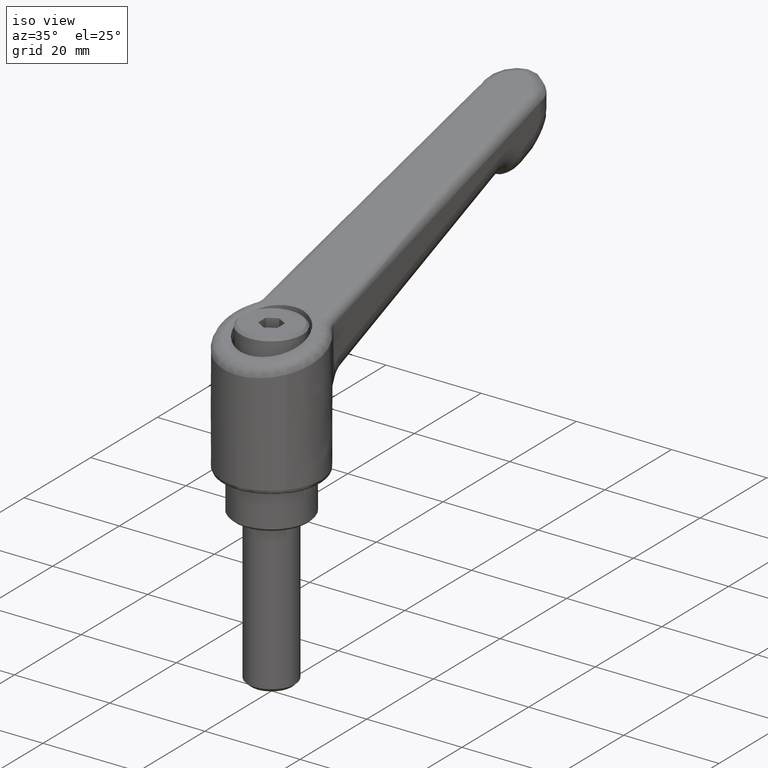
[diagram: clean part render]
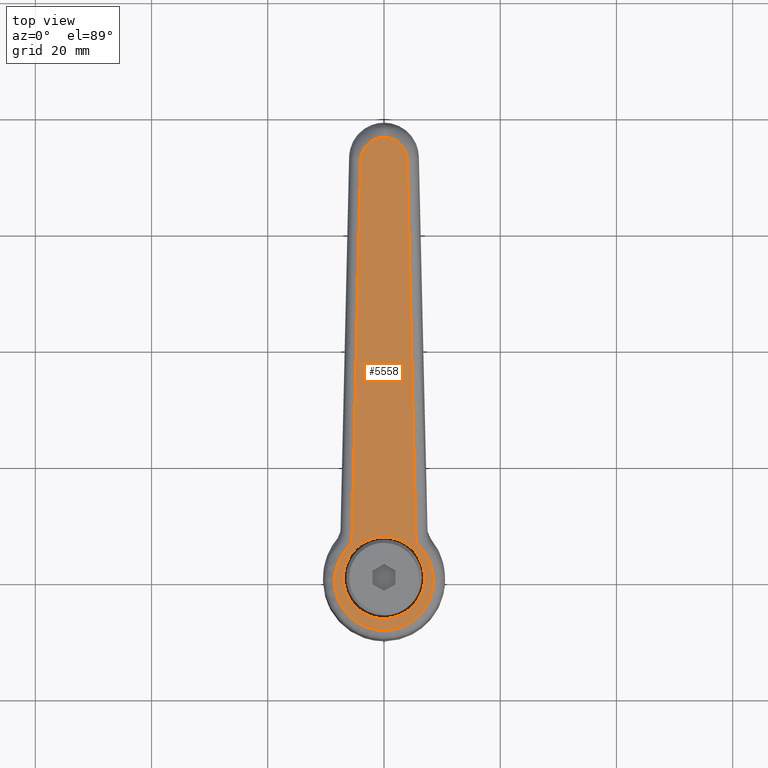
[diagram: tour spotlight — one face highlighted and labeled with its STEP entity id]
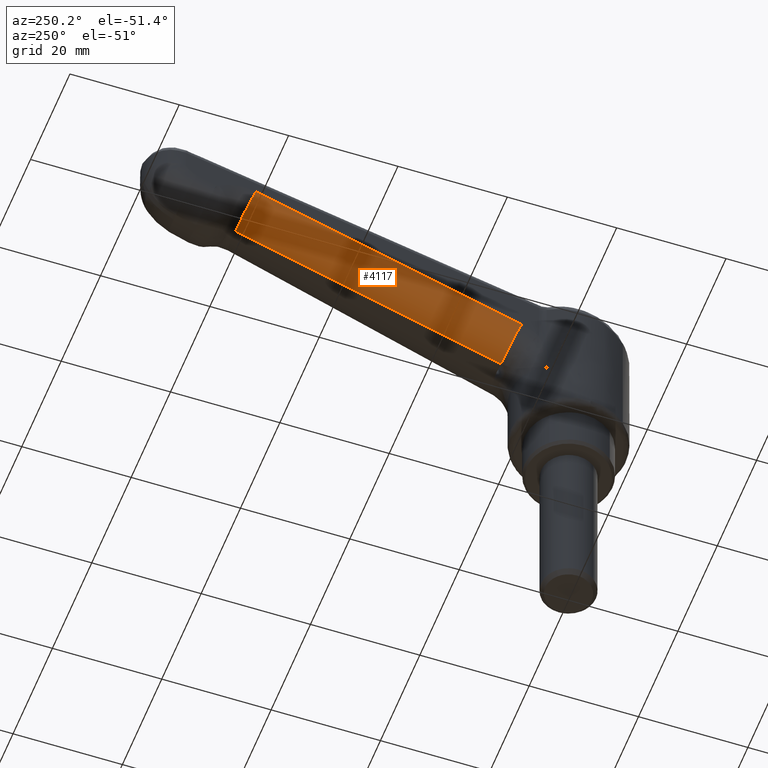
[diagram: tour spotlight — one face highlighted and labeled with its STEP entity id]
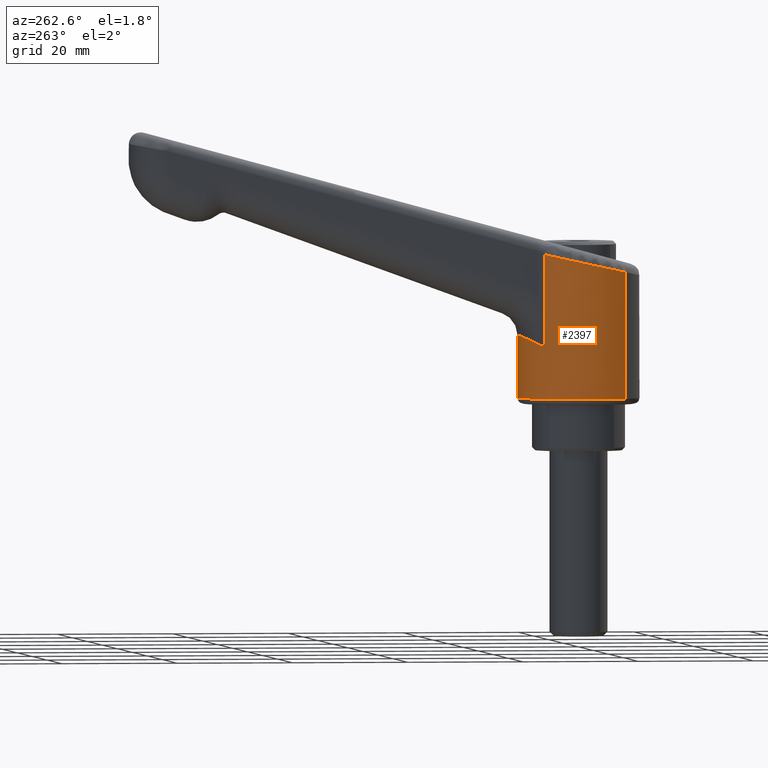
[diagram: tour spotlight — one face highlighted and labeled with its STEP entity id]
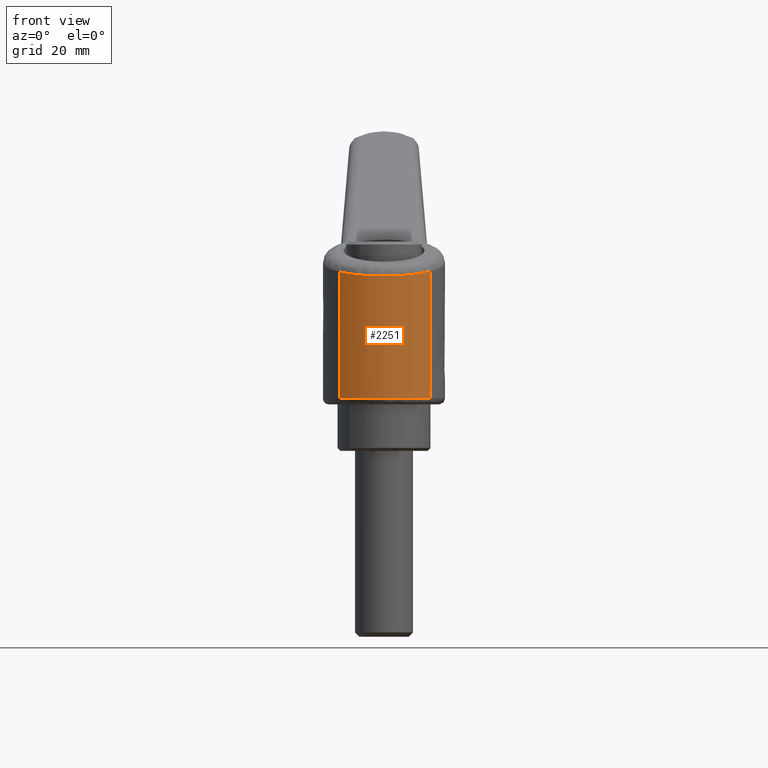
[diagram: tour spotlight — one face highlighted and labeled with its STEP entity id]
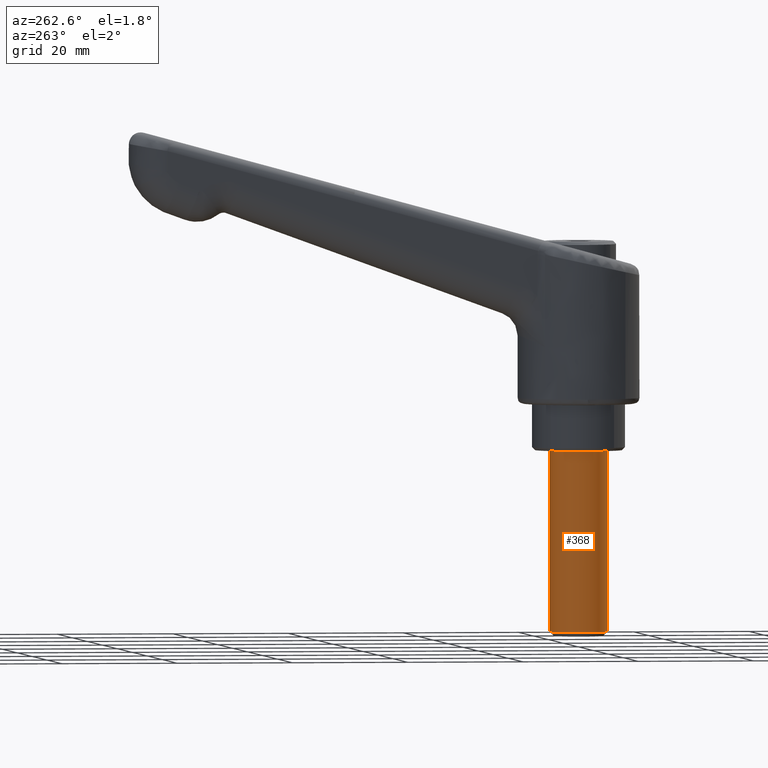
[diagram: tour spotlight — one face highlighted and labeled with its STEP entity id]
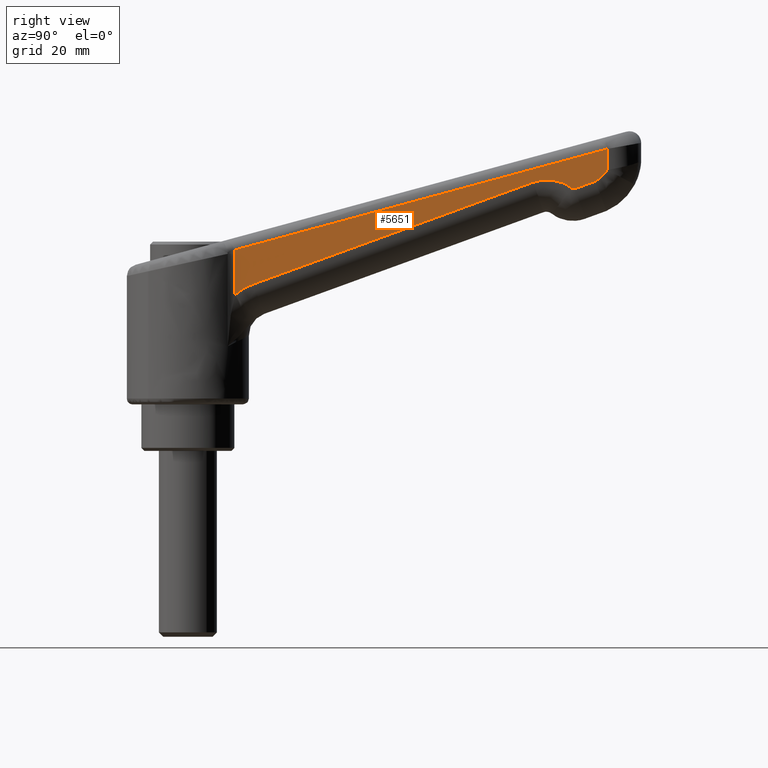
[diagram: tour spotlight — one face highlighted and labeled with its STEP entity id]
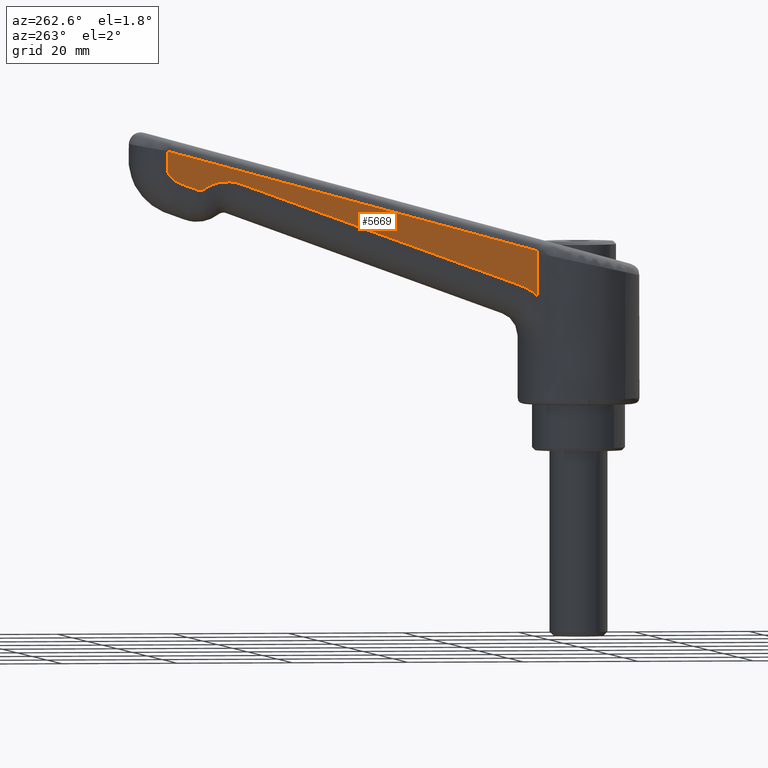
[diagram: tour spotlight — one face highlighted and labeled with its STEP entity id]
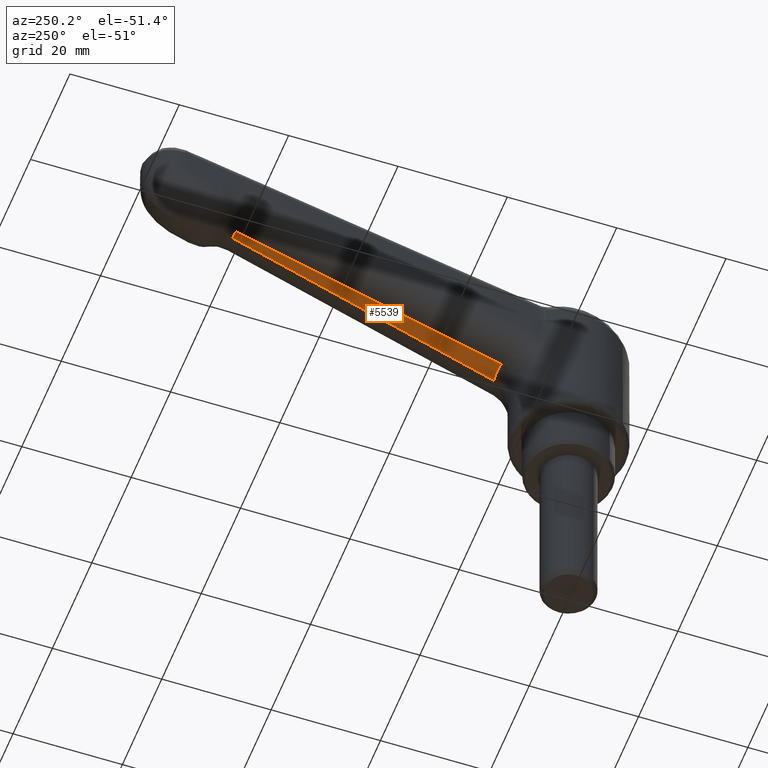
[diagram: tour spotlight — one face highlighted and labeled with its STEP entity id]
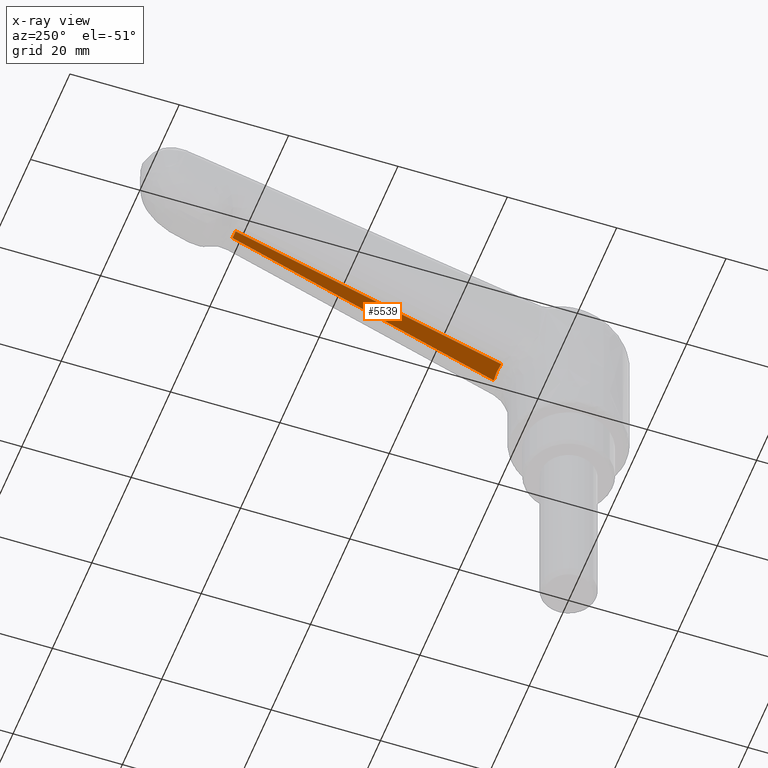
[diagram: x-ray of the same camera — body ghosted, this tour face saturated]
A machine part: a face-by-face anatomy tour. The part has 75 B-rep faces; the first image is the clean iso view, then the 8 largest visible faces are spotlighted one at a time (largest first), each with its STEP entity span.

Face 1 — top view, entity #5558. In plain terms, the highlighted face is a freeform B-spline surface patch.
Definition (entity closure, byte-faithful):
#2047=CARTESIAN_POINT('',(5.160941357670028,4.729131453310536,27.861636781501890));
#2048=VERTEX_POINT('',#2047);
#2054=CARTESIAN_POINT('',(-7.0,0.0,24.563752396048091));
#2055=VERTEX_POINT('',#2054);
#2056=CARTESIAN_POINT('',(5.160941357670029,4.729131453310538,27.861636781501886));
#2057=CARTESIAN_POINT('',(3.080073716241349,7.0,27.297333352924483));
#2058=CARTESIAN_POINT('',(1.285837E-015,7.0,26.462058622450350));
#2059=CARTESIAN_POINT('',(-6.999999999999999,6.999999999999999,24.563752396048088));
#2060=CARTESIAN_POINT('',(-7.0,0.0,24.563752396048091));
#2068=(BOUNDED_CURVE()B_SPLINE_CURVE(2,(#2056,#2057,#2058,#2059,#2060),.UNSPECIFIED.,.F.,.U.)B_SPLINE_CURVE_WITH_KNOTS((3,2,3),(0.618415209084125,0.750000000000000,1.0),.UNSPECIFIED.)CURVE()GEOMETRIC_REPRESENTATION_ITEM()RATIONAL_B_SPLINE_CURVE((0.853959780837949,0.845838828167017,1.0,0.707106781186548,1.0))REPRESENTATION_ITEM(''));
#2069=EDGE_CURVE('',#2048,#2055,#2068,.T.);
#2071=CARTESIAN_POINT('',(5.016556884577492,-4.882023865549834,27.822478384855081));
#2072=VERTEX_POINT('',#2071);
#2073=CARTESIAN_POINT('',(-7.0,0.0,24.563752396048091));
#2074=CARTESIAN_POINT('',(-6.999999920628393,-6.999999918441170,24.563751794329860));
#2075=CARTESIAN_POINT('',(0.000000289103453,-6.999999702929800,26.462056430749499));
#2076=CARTESIAN_POINT('',(2.955380237191736,-6.999999611941519,27.263515186427529));
#2077=CARTESIAN_POINT('',(5.016556884577494,-4.882023865549834,27.822478384855078));
#2085=(BOUNDED_CURVE()B_SPLINE_CURVE(2,(#2073,#2074,#2075,#2076,#2077),.UNSPECIFIED.,.F.,.U.)B_SPLINE_CURVE_WITH_KNOTS((3,2,3),(0.0,0.250000000000000,0.377050637463121),.UNSPECIFIED.)CURVE()GEOMETRIC_REPRESENTATION_ITEM()RATIONAL_B_SPLINE_CURVE((1.0,0.707106781186548,1.0,0.851150919364503,0.853592803373320))REPRESENTATION_ITEM(''));
#2086=EDGE_CURVE('',#2055,#2072,#2085,.T.);
#2123=CARTESIAN_POINT('',(7.0,-8.572244E-016,28.360364848852608));
#2124=VERTEX_POINT('',#2123);
#2125=CARTESIAN_POINT('',(5.016556884577494,-4.882023865549834,27.822478384855078));
#2126=CARTESIAN_POINT('',(7.000000205554651,-2.843923514713702,28.360363290537425));
#2127=CARTESIAN_POINT('',(7.0,-8.572244E-016,28.360364848852608));
#2135=(BOUNDED_CURVE()B_SPLINE_CURVE(2,(#2125,#2126,#2127),.UNSPECIFIED.,.F.,.U.)B_SPLINE_CURVE_WITH_KNOTS((3,3),(0.377050637463121,0.500000000000000),.UNSPECIFIED.)CURVE()GEOMETRIC_REPRESENTATION_ITEM()RATIONAL_B_SPLINE_CURVE((0.853592803373320,0.855955861822045,1.0))REPRESENTATION_ITEM(''));
#2136=EDGE_CURVE('',#2072,#2124,#2135,.T.);
#2138=CARTESIAN_POINT('',(7.0,-8.572244E-016,28.360364848852608));
#2139=CARTESIAN_POINT('',(6.999999999999999,2.722151122972383,28.360364848852608));
#2140=CARTESIAN_POINT('',(5.160941357670029,4.729131453310538,27.861636781501886));
#2148=(BOUNDED_CURVE()B_SPLINE_CURVE(2,(#2138,#2139,#2140),.UNSPECIFIED.,.F.,.U.)B_SPLINE_CURVE_WITH_KNOTS((3,3),(0.500000000000000,0.618415209084126),.UNSPECIFIED.)CURVE()GEOMETRIC_REPRESENTATION_ITEM()RATIONAL_B_SPLINE_CURVE((1.0,0.861267953019529,0.853959780837949))REPRESENTATION_ITEM(''));
#2149=EDGE_CURVE('',#2124,#2048,#2148,.T.);
#4580=CARTESIAN_POINT('',(5.940270675266100,-5.519973294428710,28.072980452360650));
#4581=VERTEX_POINT('',#4580);
#4829=CARTESIAN_POINT('',(5.940270675266040,5.519973294428770,28.072980452360650));
#4830=VERTEX_POINT('',#4829);
#5200=CARTESIAN_POINT('',(5.940270675266040,5.519973294428770,28.072980452360650));
#5201=CARTESIAN_POINT('',(2.092957256438765,10.025071493159286,27.029640592663412));
#5202=CARTESIAN_POINT('',(-3.465254488648613,7.974702619111119,25.522328026468902));
#5203=CARTESIAN_POINT('',(-9.023466233735919,5.924333745062977,24.015015460274405));
#5204=CARTESIAN_POINT('',(-9.023466233735919,-9.606188E-014,24.015015460274409));
#5205=CARTESIAN_POINT('',(-9.023466233735919,-5.924333745063118,24.015015460274405));
#5206=CARTESIAN_POINT('',(-3.465254488648433,-7.974702619111184,25.522328026468951));
#5207=CARTESIAN_POINT('',(2.092957256438992,-10.025071493159230,27.029640592663473));
#5208=CARTESIAN_POINT('',(5.940270675266100,-5.519973294428710,28.072980452360650));
#5216=(BOUNDED_CURVE()B_SPLINE_CURVE(2,(#5200,#5201,#5202,#5203,#5204,#5205,#5206,#5207,#5208),.UNSPECIFIED.,.F.,.U.)B_SPLINE_CURVE_WITH_KNOTS((3,2,2,2,3),(0.0,0.250000000000000,0.500000000000000,0.750000000000000,1.0),.UNSPECIFIED.)CURVE()GEOMETRIC_REPRESENTATION_ITEM()RATIONAL_B_SPLINE_CURVE((1.0,0.820394032118735,1.0,0.820394032118735,1.0,0.820394032118735,1.0,0.820394032118735,1.0))REPRESENTATION_ITEM(''));
#5217=EDGE_CURVE('',#4830,#4581,#5216,.T.);
#5246=CARTESIAN_POINT('',(71.569214214229888,3.998934980117755,45.870670759820300));
#5247=VERTEX_POINT('',#5246);
#5248=CARTESIAN_POINT('',(71.569214214229888,3.998934980117755,45.870670759820300));
#5249=CARTESIAN_POINT('',(5.940270675266040,5.519973294428770,28.072980452360650));
#5250=QUASI_UNIFORM_CURVE('',1,(#5248,#5249),.UNSPECIFIED.,.F.,.U.);
#5251=EDGE_CURVE('',#5247,#4830,#5250,.T.);
#5282=CARTESIAN_POINT('',(71.569214214229888,-3.998934980117811,45.870670759820300));
#5283=VERTEX_POINT('',#5282);
#5284=CARTESIAN_POINT('',(5.940270675266100,-5.519973294428710,28.072980452360650));
#5285=CARTESIAN_POINT('',(71.569214214229888,-3.998934980117811,45.870670759820300));
#5286=QUASI_UNIFORM_CURVE('',1,(#5284,#5285),.UNSPECIFIED.,.F.,.U.);
#5287=EDGE_CURVE('',#4581,#5283,#5286,.T.);
#5390=CARTESIAN_POINT('',(75.476533766264112,0.0,46.930283478987398));
#5391=VERTEX_POINT('',#5390);
#5421=CARTESIAN_POINT('',(75.476533766264112,0.0,46.930283478987398));
#5422=CARTESIAN_POINT('',(75.476533766264112,3.908373067859956,46.930283478987413));
#5423=CARTESIAN_POINT('',(71.569214214229888,3.998934980117755,45.870670759820300));
#5431=(BOUNDED_CURVE()B_SPLINE_CURVE(2,(#5421,#5422,#5423),.UNSPECIFIED.,.F.,.U.)CURVE()GEOMETRIC_REPRESENTATION_ITEM()QUASI_UNIFORM_CURVE()RATIONAL_B_SPLINE_CURVE((1.0,0.715251743091706,1.0))REPRESENTATION_ITEM(''));
#5432=EDGE_CURVE('',#5391,#5247,#5431,.T.);
#5476=CARTESIAN_POINT('',(71.569214214229888,-3.998934980117756,45.870670759820293));
#5477=CARTESIAN_POINT('',(75.476542396383621,-3.908377437192929,46.930285819360201));
#5478=CARTESIAN_POINT('',(75.476533766264112,0.0,46.930283478987398));
#5486=(BOUNDED_CURVE()B_SPLINE_CURVE(2,(#5476,#5477,#5478),.UNSPECIFIED.,.F.,.U.)CURVE()GEOMETRIC_REPRESENTATION_ITEM()QUASI_UNIFORM_CURVE()RATIONAL_B_SPLINE_CURVE((1.0,0.715250971503600,1.0))REPRESENTATION_ITEM(''));
#5487=EDGE_CURVE('',#5283,#5391,#5486,.T.);
#5540=CARTESIAN_POINT('',(79.697307016035651,-9.333844882264600,48.074900641883580));
#5541=CARTESIAN_POINT('',(-13.244243260951739,-9.333844882264600,22.870397272985890));
#5542=CARTESIAN_POINT('',(79.697307016035651,9.333844621602960,48.074900641883580));
#5543=CARTESIAN_POINT('',(-13.244243260951739,9.333844621602960,22.870397272985890));
#5544=B_SPLINE_SURFACE_WITH_KNOTS('',1,1,((#5540,#5542),(#5541,#5543)),.UNSPECIFIED.,.F.,.F.,.U.,(2,2),(2,2),(0.0,96.298487828016022),(0.0,18.667689503867560),.UNSPECIFIED.);
#5545=ORIENTED_EDGE('',*,*,#5251,.T.);
#5546=ORIENTED_EDGE('',*,*,#5217,.T.);
#5547=ORIENTED_EDGE('',*,*,#5287,.T.);
#5548=ORIENTED_EDGE('',*,*,#5487,.T.);
#5549=ORIENTED_EDGE('',*,*,#5432,.T.);
#5550=EDGE_LOOP('',(#5545,#5546,#5547,#5548,#5549));
#5551=FACE_OUTER_BOUND('',#5550,.T.);
#5552=ORIENTED_EDGE('',*,*,#2149,.F.);
#5553=ORIENTED_EDGE('',*,*,#2136,.F.);
#5554=ORIENTED_EDGE('',*,*,#2086,.F.);
#5555=ORIENTED_EDGE('',*,*,#2069,.F.);
#5556=EDGE_LOOP('',(#5552,#5553,#5554,#5555));
#5557=FACE_BOUND('',#5556,.T.);
#5558=ADVANCED_FACE('',(#5551,#5557),#5544,.F.);

Face 2 — auxiliary view, entity #4117. In plain terms, the highlighted face is a freeform B-spline surface patch.
Definition (entity closure, byte-faithful):
#4030=CARTESIAN_POINT('',(61.163736130805503,0.794885205271823,33.054697017193099));
#4031=VERTEX_POINT('',#4030);
#4032=CARTESIAN_POINT('',(59.410061699998501,6.293408658326110,38.223006701410803));
#4033=VERTEX_POINT('',#4032);
#4034=CARTESIAN_POINT('',(61.163736130805503,0.794885205271823,33.054697017193099));
#4035=CARTESIAN_POINT('',(61.169694565287202,1.085815348684484,33.056851753936741));
#4036=CARTESIAN_POINT('',(61.165319220824919,1.734820125022398,33.110199260832957));
#4037=CARTESIAN_POINT('',(61.099074496180137,2.691892343822306,33.353148219791798));
#4038=CARTESIAN_POINT('',(60.959916894806078,3.665277842678314,33.797462522879187));
#4039=CARTESIAN_POINT('',(60.769381673670253,4.476778583245167,34.372627487128923));
#4040=CARTESIAN_POINT('',(60.524419936571697,5.178144286518247,35.090315129965383));
#4041=CARTESIAN_POINT('',(60.231623453248602,5.748156534810293,35.931063590589048));
#4042=CARTESIAN_POINT('',(59.851453130648132,6.178698247081606,37.002988815661872));
#4043=CARTESIAN_POINT('',(59.563111682341749,6.289979030351300,37.802286756508188));
#4044=CARTESIAN_POINT('',(59.410061699998501,6.293408658326110,38.223006701410803));
#4045=B_SPLINE_CURVE_WITH_KNOTS('',3,(#4034,#4035,#4036,#4037,#4038,#4039,#4040,#4041,#4042,#4043,#4044),.UNSPECIFIED.,.F.,.U.,(4,1,1,1,1,1,1,1,4),(0.000000101772935,0.873002280312813,1.947493346574008,2.954831938846041,4.096477640385757,4.969461126509899,6.043948243679772,7.252754191082846,8.595847202870129),.UNSPECIFIED.);
#4046=EDGE_CURVE('',#4031,#4033,#4045,.T.);
#4072=CARTESIAN_POINT('',(9.998545241252074,7.436701247559301,20.391917680247278));
#4073=CARTESIAN_POINT('',(60.594857599714643,6.264064214108152,38.807461121297578));
#4074=CARTESIAN_POINT('',(12.017655519398270,7.544339504780888,14.851309332779781));
#4075=CARTESIAN_POINT('',(62.613967877860844,6.371702471329737,33.266852773830088));
#4076=CARTESIAN_POINT('',(11.793181169137730,1.655545387337092,15.093070119911200));
#4077=CARTESIAN_POINT('',(62.389493527600301,0.482908353885943,33.508613560961507));
#4085=(BOUNDED_SURFACE()B_SPLINE_SURFACE(1,2,((#4072,#4074,#4076),(#4073,#4075,#4077)),.UNSPECIFIED.,.F.,.F.,.U.)B_SPLINE_SURFACE_WITH_KNOTS((2,2),(3,3),(0.0,53.856235870292167),(0.0,9.565872249140517),.UNSPECIFIED.)GEOMETRIC_REPRESENTATION_ITEM()RATIONAL_B_SPLINE_SURFACE(((1.0,0.681998360062498,1.0),(1.0,0.681998360062498,1.0)))REPRESENTATION_ITEM('')SURFACE());
#4086=CARTESIAN_POINT('',(13.005437633756101,1.911018015219485,15.526517656288650));
#4087=VERTEX_POINT('',#4086);
#4088=CARTESIAN_POINT('',(11.251763202949100,7.409541468273670,20.694827340506350));
#4089=VERTEX_POINT('',#4088);
#4090=CARTESIAN_POINT('',(13.005437633756101,1.911018015219485,15.526517656288650));
#4091=CARTESIAN_POINT('',(13.011395483448990,2.201946989681419,15.528673925292599));
#4092=CARTESIAN_POINT('',(13.007023702412850,2.850959018702182,15.582012103576220));
#4093=CARTESIAN_POINT('',(12.946793697206880,3.721007364301098,15.802894375159520));
#4094=CARTESIAN_POINT('',(12.840751707191711,4.519313196473317,16.145075785820229));
#4095=CARTESIAN_POINT('',(12.700164625087170,5.241028371617527,16.577292075672521));
#4096=CARTESIAN_POINT('',(12.490595566293139,5.980201269720288,17.200146519831229));
#4097=CARTESIAN_POINT('',(12.174485057464640,6.714636948968321,18.115419673435468));
#4098=CARTESIAN_POINT('',(11.753705552016880,7.264738199871706,19.306530892114001));
#4099=CARTESIAN_POINT('',(11.420117287698250,7.405778748437574,20.232038490926900));
#4100=CARTESIAN_POINT('',(11.251763202949100,7.409541468273670,20.694827340506350));
#4101=B_SPLINE_CURVE_WITH_KNOTS('',3,(#4090,#4091,#4092,#4093,#4094,#4095,#4096,#4097,#4098,#4099,#4100),.UNSPECIFIED.,.F.,.U.,(4,1,1,1,1,1,1,1,4),(0.000000101779182,0.873002280318323,1.947493346578643,2.686203423051856,3.492088139740710,4.499370050277770,5.641016661289241,7.118449013597767,8.595847202870024),.UNSPECIFIED.);
#4102=EDGE_CURVE('',#4087,#4089,#4101,.T.);
#4103=ORIENTED_EDGE('',*,*,#4102,.T.);
#4104=CARTESIAN_POINT('',(59.410061699998501,6.293408658326110,38.223006701410803));
#4105=CARTESIAN_POINT('',(11.251763202949100,7.409541468273670,20.694827340506350));
#4106=QUASI_UNIFORM_CURVE('',1,(#4104,#4105),.UNSPECIFIED.,.F.,.U.);
#4107=EDGE_CURVE('',#4033,#4089,#4106,.T.);
#4108=ORIENTED_EDGE('',*,*,#4107,.F.);
#4109=ORIENTED_EDGE('',*,*,#4046,.F.);
#4110=CARTESIAN_POINT('',(13.005437633756101,1.911018015219485,15.526517656288650));
#4111=CARTESIAN_POINT('',(61.163736130805503,0.794885205271823,33.054697017193099));
#4112=QUASI_UNIFORM_CURVE('',1,(#4110,#4111),.UNSPECIFIED.,.F.,.U.);
#4113=EDGE_CURVE('',#4087,#4031,#4112,.T.);
#4114=ORIENTED_EDGE('',*,*,#4113,.F.);
#4115=EDGE_LOOP('',(#4103,#4108,#4109,#4114));
#4116=FACE_OUTER_BOUND('',#4115,.T.);
#4117=ADVANCED_FACE('',(#4116),#4085,.T.);

Face 3 — auxiliary view, entity #2397. In plain terms, the highlighted face is a freeform B-spline surface patch.
Definition (entity closure, byte-faithful):
#2183=CARTESIAN_POINT('',(-6.823606710889278,-7.980500702030341,22.891820902044099));
#2184=VERTEX_POINT('',#2183);
#2185=CARTESIAN_POINT('',(-7.139260589506565,7.699412849981324,22.822535343776028));
#2186=VERTEX_POINT('',#2185);
#2204=CARTESIAN_POINT('',(-7.139242017782905,7.699430070555946,0.999999999328219));
#2205=VERTEX_POINT('',#2204);
#2206=CARTESIAN_POINT('',(-7.139260589506565,7.699412849981324,22.822535343776028));
#2207=CARTESIAN_POINT('',(-7.139242017782905,7.699430070555946,0.999999999328219));
#2208=QUASI_UNIFORM_CURVE('',1,(#2206,#2207),.UNSPECIFIED.,.F.,.U.);
#2209=EDGE_CURVE('',#2186,#2205,#2208,.T.);
#2231=CARTESIAN_POINT('',(-6.823606671033236,-7.980500736108650,0.999999999066245));
#2232=VERTEX_POINT('',#2231);
#2244=CARTESIAN_POINT('',(-6.823606710889278,-7.980500702030341,22.891820902044099));
#2245=CARTESIAN_POINT('',(-6.823606671033236,-7.980500736108650,0.999999999066245));
#2246=QUASI_UNIFORM_CURVE('',1,(#2244,#2245),.UNSPECIFIED.,.F.,.U.);
#2247=EDGE_CURVE('',#2184,#2232,#2246,.T.);
#2252=CARTESIAN_POINT('',(-7.296886392925575,7.553255450459672,26.514099755668287));
#2253=CARTESIAN_POINT('',(-7.218399734569469,7.626031643445757,26.514099755668280));
#2254=CARTESIAN_POINT('',(0.560188587154789,14.838672068174482,26.514099755668273));
#2255=CARTESIAN_POINT('',(7.699430327664633,7.139241740509844,26.514099755668280));
#2256=CARTESIAN_POINT('',(14.838672068174482,-0.560188587154789,26.514099755668273));
#2257=CARTESIAN_POINT('',(7.139241740509844,-7.699430327664633,26.514099755668280));
#2258=CARTESIAN_POINT('',(0.282962932629214,-14.056865847785954,26.514099755668283));
#2259=CARTESIAN_POINT('',(-6.909385665804487,-7.907156700911391,26.514099755668276));
#2260=CARTESIAN_POINT('',(-6.994525410334155,-7.834359246987829,26.514099755668280));
#2261=CARTESIAN_POINT('',(-7.296886392925575,7.553255450459672,0.362147504006337));
#2262=CARTESIAN_POINT('',(-7.218399734569469,7.626031643445757,0.362147504006337));
#2263=CARTESIAN_POINT('',(0.560188587154789,14.838672068174482,0.362147504006337));
#2264=CARTESIAN_POINT('',(7.699430327664633,7.139241740509844,0.362147504006337));
#2265=CARTESIAN_POINT('',(14.838672068174482,-0.560188587154789,0.362147504006337));
#2266=CARTESIAN_POINT('',(7.139241740509844,-7.699430327664633,0.362147504006337));
#2267=CARTESIAN_POINT('',(0.282962932629214,-14.056865847785954,0.362147504006337));
#2268=CARTESIAN_POINT('',(-6.909385665804487,-7.907156700911391,0.362147504006337));
#2269=CARTESIAN_POINT('',(-6.994525410334155,-7.834359246987829,0.362147504006338));
#2277=(BOUNDED_SURFACE()B_SPLINE_SURFACE(2,1,((#2252,#2261),(#2253,#2262),(#2254,#2263),(#2255,#2264),(#2256,#2265),(#2257,#2266),(#2258,#2267),(#2259,#2268),(#2260,#2269)),.UNSPECIFIED.,.F.,.F.,.U.)B_SPLINE_SURFACE_WITH_KNOTS((3,1,2,2,1,3),(2,2),(0.0,0.254026016788580,17.650995636458571,35.047965256128563,51.053177306224939,51.307173207502132),(0.0,26.151952251661939),.UNSPECIFIED.)GEOMETRIC_REPRESENTATION_ITEM()RATIONAL_B_SPLINE_SURFACE(((1.008553500908048,1.008553500908048),(1.004276750454024,1.004276750454024),(0.707106781186548,0.707106781186548),(1.0,1.0),(0.707106781186548,0.707106781186548),(1.0,1.0),(0.730538238691624,0.730538238691624),(0.960478162674393,0.960478162674393),(0.964070207158127,0.964070207158127)))REPRESENTATION_ITEM('')SURFACE());
#2278=CARTESIAN_POINT('',(6.841752169418649,-7.964949921515840,25.891804639626351));
#2279=VERTEX_POINT('',#2278);
#2280=CARTESIAN_POINT('',(6.841752169418646,-7.964949921515839,25.891804639626379));
#2281=CARTESIAN_POINT('',(0.015736291271141,-13.828377740019169,24.393275636013197));
#2282=CARTESIAN_POINT('',(-6.823606710889278,-7.980500702030341,22.891820902044103));
#2290=(BOUNDED_CURVE()B_SPLINE_CURVE(2,(#2280,#2281,#2282),.UNSPECIFIED.,.F.,.U.)B_SPLINE_CURVE_WITH_KNOTS((3,3),(0.0,0.308847889211876),.UNSPECIFIED.)CURVE()GEOMETRIC_REPRESENTATION_ITEM()RATIONAL_B_SPLINE_CURVE((1.0,0.744945961192656,0.962529331508985))REPRESENTATION_ITEM(''));
#2291=EDGE_CURVE('',#2279,#2184,#2290,.T.);
#2292=ORIENTED_EDGE('',*,*,#2291,.T.);
#2293=ORIENTED_EDGE('',*,*,#2247,.T.);
#2294=CARTESIAN_POINT('',(0.131917557290497,-10.499171289110320,1.0));
#2295=VERTEX_POINT('',#2294);
#2296=CARTESIAN_POINT('',(-6.823606671033236,-7.980500736108650,0.999999999066245));
#2297=CARTESIAN_POINT('',(-6.075693568273892,-8.620558755828126,0.999999999202716));
#2298=CARTESIAN_POINT('',(-4.834180159478965,-9.409887117109319,0.999999999402573));
#2299=CARTESIAN_POINT('',(-2.949585108509042,-10.116344197030781,0.999999999657922));
#2300=CARTESIAN_POINT('',(-1.443877781383425,-10.441086437289650,0.999999999838515));
#2301=CARTESIAN_POINT('',(-0.379898370192002,-10.505624438594589,0.999999999950025));
#2302=CARTESIAN_POINT('',(0.131917557290497,-10.499171289110320,1.0));
#2303=B_SPLINE_CURVE_WITH_KNOTS('',3,(#2296,#2297,#2298,#2299,#2300,#2301,#2302),.UNSPECIFIED.,.F.,.U.,(4,1,1,1,4),(0.000000010045676,2.953042216437466,4.370476180141784,6.024189502311229,7.559764125040242),.UNSPECIFIED.);
#2304=EDGE_CURVE('',#2232,#2295,#2303,.T.);
#2305=ORIENTED_EDGE('',*,*,#2304,.T.);
#2306=CARTESIAN_POINT('',(10.500000000000000,0.0,1.0));
#2307=VERTEX_POINT('',#2306);
#2308=CARTESIAN_POINT('',(0.131917557290497,-10.499171289110320,1.0));
#2309=CARTESIAN_POINT('',(0.770976803454501,-10.491186650935189,1.000000000062432));
#2310=CARTESIAN_POINT('',(2.175324348673163,-10.344801640678471,1.000000000187044));
#2311=CARTESIAN_POINT('',(3.933546025313373,-9.791811597293480,1.000000000306941));
#2312=CARTESIAN_POINT('',(5.527754895010141,-8.971492750803385,1.000000000384503));
#2313=CARTESIAN_POINT('',(7.023098081416043,-7.901349816874472,1.000000000427885));
#2314=CARTESIAN_POINT('',(8.278501319465430,-6.550165838552619,1.000000000420072));
#2315=CARTESIAN_POINT('',(9.295416227129628,-4.971005006232967,1.000000000366424));
#2316=CARTESIAN_POINT('',(9.888573719063983,-3.642722797522521,1.000000000295335));
#2317=CARTESIAN_POINT('',(10.373370460868600,-1.917294954407673,1.000000000174748));
#2318=CARTESIAN_POINT('',(10.500142958784030,-0.766951716147635,1.000000000074933));
#2319=CARTESIAN_POINT('',(10.500000000000000,0.0,1.0));
#2320=B_SPLINE_CURVE_WITH_KNOTS('',3,(#2308,#2309,#2310,#2311,#2312,#2313,#2314,#2315,#2316,#2317,#2318,#2319),.UNSPECIFIED.,.F.,.U.,(4,1,1,1,1,1,1,1,1,4),(0.000000011083916,1.917346727854723,4.218210548279902,5.496469665706327,7.286007966174386,9.714647221132541,10.992897962271689,12.910283095152201,14.060717449964191,16.361541428917938),.UNSPECIFIED.);
#2321=EDGE_CURVE('',#2295,#2307,#2320,.T.);
#2322=ORIENTED_EDGE('',*,*,#2321,.T.);
#2323=CARTESIAN_POINT('',(-0.263866002222437,10.496683987472951,0.999999997953769));
#2324=VERTEX_POINT('',#2323);
#2325=CARTESIAN_POINT('',(10.500000000000000,0.0,1.0));
#2326=CARTESIAN_POINT('',(10.500077067265620,0.654583361887859,1.000000000090835));
#2327=CARTESIAN_POINT('',(10.401719772884331,1.701875440558604,1.000000000204119));
#2328=CARTESIAN_POINT('',(10.022926835476101,3.229074528396682,1.000000000292731));
#2329=CARTESIAN_POINT('',(9.463315059809359,4.654823456874666,1.000000000308433));
#2330=CARTESIAN_POINT('',(8.523562149627569,6.236539635740437,1.000000000222077));
#2331=CARTESIAN_POINT('',(7.304626681065121,7.617473956495944,1.000000000017026));
#2332=CARTESIAN_POINT('',(5.970127559657105,8.681366058145478,0.999999999730392));
#2333=CARTESIAN_POINT('',(4.799968473551813,9.366505867497798,0.999999999444684));
#2334=CARTESIAN_POINT('',(3.638509382433221,9.873016126262860,0.999999999137030));
#2335=CARTESIAN_POINT('',(2.008986756190542,10.375515573890430,0.999999998676514));
#2336=CARTESIAN_POINT('',(0.652283040735698,10.519995467323030,0.999999998255111));
#2337=CARTESIAN_POINT('',(-0.263866002222437,10.496683987472951,0.999999997953769));
#2338=B_SPLINE_CURVE_WITH_KNOTS('',3,(#2325,#2326,#2327,#2328,#2329,#2330,#2331,#2332,#2333,#2334,#2335,#2336,#2337),.UNSPECIFIED.,.F.,.U.,(4,1,1,1,1,1,1,1,1,1,4),(0.000000020977168,1.963742808904483,3.141998788013931,4.713013040281654,6.545863812351715,8.640508790546956,10.211505765456261,11.651601507527159,12.698939791283170,14.008115257373600,16.757363750330288),.UNSPECIFIED.);
#2339=EDGE_CURVE('',#2307,#2324,#2338,.T.);
#2340=ORIENTED_EDGE('',*,*,#2339,.T.);
#2341=CARTESIAN_POINT('',(-0.263866002222437,10.496683987472951,0.999999997953769));
#2342=CARTESIAN_POINT('',(-1.172424829176233,10.474120924181539,0.999999998135397));
#2343=CARTESIAN_POINT('',(-2.707737368412446,10.233797040134320,0.999999998442321));
#2344=CARTESIAN_POINT('',(-5.070405353990817,9.303505300973809,0.999999998914638));
#2345=CARTESIAN_POINT('',(-6.415120988027574,8.371424315000843,0.999999999183464));
#2346=CARTESIAN_POINT('',(-7.139242017782905,7.699430070555946,0.999999999328219));
#2347=B_SPLINE_CURVE_WITH_KNOTS('',3,(#2341,#2342,#2343,#2344,#2345,#2346),.UNSPECIFIED.,.F.,.U.,(4,1,1,4),(0.000000010223169,2.726446149711101,4.623087379431858,7.586620432384893),.UNSPECIFIED.);
#2348=EDGE_CURVE('',#2324,#2205,#2347,.T.);
#2349=ORIENTED_EDGE('',*,*,#2348,.T.);
#2350=ORIENTED_EDGE('',*,*,#2209,.F.);
#2351=CARTESIAN_POINT('',(6.841752169418649,7.964949921515840,25.891804639626351));
#2352=VERTEX_POINT('',#2351);
#2353=CARTESIAN_POINT('',(-7.139260589506565,7.699412849981324,22.822535343776028));
#2354=CARTESIAN_POINT('',(-0.267254429061213,14.071460713945985,24.331155404248406));
#2355=CARTESIAN_POINT('',(6.841752169418649,7.964949921515840,25.891804639626351));
#2363=(BOUNDED_CURVE()B_SPLINE_CURVE(2,(#2353,#2354,#2355),.UNSPECIFIED.,.F.,.U.)B_SPLINE_CURVE_WITH_KNOTS((3,3),(0.681713560675306,1.0),.UNSPECIFIED.)CURVE()GEOMETRIC_REPRESENTATION_ITEM()RATIONAL_B_SPLINE_CURVE((0.976269667936728,0.737151378775716,1.0))REPRESENTATION_ITEM(''));
#2364=EDGE_CURVE('',#2186,#2352,#2363,.T.);
#2365=ORIENTED_EDGE('',*,*,#2364,.T.);
#2366=CARTESIAN_POINT('',(6.841752169418649,7.964949921515840,9.975054710907001));
#2367=VERTEX_POINT('',#2366);
#2368=CARTESIAN_POINT('',(6.841752169418649,7.964949921515840,25.891804639626351));
#2369=CARTESIAN_POINT('',(6.841752169418649,7.964949921515840,9.975054710907001));
#2370=QUASI_UNIFORM_CURVE('',1,(#2368,#2369),.UNSPECIFIED.,.F.,.U.);
#2371=EDGE_CURVE('',#2352,#2367,#2370,.T.);
#2372=ORIENTED_EDGE('',*,*,#2371,.T.);
#2373=CARTESIAN_POINT('',(6.841752169418649,-7.964949921515840,9.975054710907001));
#2374=VERTEX_POINT('',#2373);
#2375=CARTESIAN_POINT('',(6.841752169418649,7.964949921515842,9.975054710906992));
#2376=CARTESIAN_POINT('',(10.500000000000000,4.822579250290366,11.813782760400999));
#2377=CARTESIAN_POINT('',(10.500000000000000,1.285837E-015,11.813782760401001));
#2378=CARTESIAN_POINT('',(10.500000000000000,-4.822579250290365,11.813782760400999));
#2379=CARTESIAN_POINT('',(6.841752169418655,-7.964949921515839,9.975054710906996));
#2387=(BOUNDED_CURVE()B_SPLINE_CURVE(2,(#2375,#2376,#2377,#2378,#2379),.UNSPECIFIED.,.F.,.U.)B_SPLINE_CURVE_WITH_KNOTS((3,2,3),(0.0,0.500000000000000,1.0),.UNSPECIFIED.)CURVE()GEOMETRIC_REPRESENTATION_ITEM()RATIONAL_B_SPLINE_CURVE((1.0,0.908734131830246,1.0,0.908734131830246,1.0))REPRESENTATION_ITEM(''));
#2388=EDGE_CURVE('',#2367,#2374,#2387,.T.);
#2389=ORIENTED_EDGE('',*,*,#2388,.T.);
#2390=CARTESIAN_POINT('',(6.841752169418649,-7.964949921515840,9.975054710907001));
#2391=CARTESIAN_POINT('',(6.841752169418649,-7.964949921515840,25.891804639626351));
#2392=QUASI_UNIFORM_CURVE('',1,(#2390,#2391),.UNSPECIFIED.,.F.,.U.);
#2393=EDGE_CURVE('',#2374,#2279,#2392,.T.);
#2394=ORIENTED_EDGE('',*,*,#2393,.T.);
#2395=EDGE_LOOP('',(#2292,#2293,#2305,#2322,#2340,#2349,#2350,#2365,#2372,#2389,#2394));
#2396=FACE_OUTER_BOUND('',#2395,.T.);
#2397=ADVANCED_FACE('',(#2396),#2277,.T.);

Face 4 — front view, entity #2251. In plain terms, the highlighted face is a freeform B-spline surface patch.
Definition (entity closure, byte-faithful):
#2165=CARTESIAN_POINT('',(-6.823606710936470,-7.980500701989990,23.985317290888073));
#2166=CARTESIAN_POINT('',(-7.285883830715430,-7.585237625821157,23.985317290888077));
#2167=CARTESIAN_POINT('',(-7.699430327664633,-7.139241740509844,23.985317290888069));
#2168=CARTESIAN_POINT('',(-14.838672068174482,0.560188587154789,23.985317290888073));
#2169=CARTESIAN_POINT('',(-7.139241740509844,7.699430327664633,23.985317290888069));
#2170=CARTESIAN_POINT('',(-6.823606710936470,-7.980500701989990,0.362147504006337));
#2171=CARTESIAN_POINT('',(-7.285883830715430,-7.585237625821157,0.362147504006337));
#2172=CARTESIAN_POINT('',(-7.699430327664633,-7.139241740509844,0.362147504006337));
#2173=CARTESIAN_POINT('',(-14.838672068174482,0.560188587154789,0.362147504006337));
#2174=CARTESIAN_POINT('',(-7.139241740509844,7.699430327664633,0.362147504006337));
#2182=(BOUNDED_SURFACE()B_SPLINE_SURFACE(2,1,((#2165,#2170),(#2166,#2171),(#2167,#2172),(#2168,#2173),(#2169,#2174)),.UNSPECIFIED.,.F.,.F.,.U.)B_SPLINE_SURFACE_WITH_KNOTS((3,2,3),(2,2),(0.0,1.391757569573601,18.788727189243591),(0.0,23.623169786881739),.UNSPECIFIED.)GEOMETRIC_REPRESENTATION_ITEM()RATIONAL_B_SPLINE_SURFACE(((0.956886118190660,0.956886118190660),(0.976568542494924,0.976568542494924),(1.0,1.0),(0.707106781186548,0.707106781186548),(1.0,1.0)))REPRESENTATION_ITEM('')SURFACE());
#2183=CARTESIAN_POINT('',(-6.823606710889278,-7.980500702030341,22.891820902044099));
#2184=VERTEX_POINT('',#2183);
#2185=CARTESIAN_POINT('',(-7.139260589506565,7.699412849981324,22.822535343776028));
#2186=VERTEX_POINT('',#2185);
#2187=CARTESIAN_POINT('',(-6.823606710889279,-7.980500702030341,22.891820902044099));
#2188=CARTESIAN_POINT('',(-7.235869616191197,-7.628001575240655,22.801316240185322));
#2189=CARTESIAN_POINT('',(-7.609615610990944,-7.234898198714493,22.719267300027379));
#2190=CARTESIAN_POINT('',(-14.488248986314337,-0.000000585499973,21.209192045621776));
#2191=CARTESIAN_POINT('',(-7.609616733089972,7.234897048590815,22.719276806546301));
#2192=CARTESIAN_POINT('',(-7.381753625270392,7.474561882960712,22.769300211494858));
#2193=CARTESIAN_POINT('',(-7.139260589506565,7.699412849981324,22.822535343776028));
#2201=(BOUNDED_CURVE()B_SPLINE_CURVE(2,(#2187,#2188,#2189,#2190,#2191,#2192,#2193),.UNSPECIFIED.,.F.,.U.)B_SPLINE_CURVE_WITH_KNOTS((3,2,2,3),(0.308847889211876,0.333333333333333,0.666666666666667,0.681713560675306),.UNSPECIFIED.)CURVE()GEOMETRIC_REPRESENTATION_ITEM()RATIONAL_B_SPLINE_CURVE((0.962529331508985,0.979779329458571,1.0,0.724725290651227,1.0,0.987573911875510,0.976269667936728))REPRESENTATION_ITEM(''));
#2202=EDGE_CURVE('',#2184,#2186,#2201,.T.);
#2203=ORIENTED_EDGE('',*,*,#2202,.T.);
#2204=CARTESIAN_POINT('',(-7.139242017782905,7.699430070555946,0.999999999328219));
#2205=VERTEX_POINT('',#2204);
#2206=CARTESIAN_POINT('',(-7.139260589506565,7.699412849981324,22.822535343776028));
#2207=CARTESIAN_POINT('',(-7.139242017782905,7.699430070555946,0.999999999328219));
#2208=QUASI_UNIFORM_CURVE('',1,(#2206,#2207),.UNSPECIFIED.,.F.,.U.);
#2209=EDGE_CURVE('',#2186,#2205,#2208,.T.);
#2210=ORIENTED_EDGE('',*,*,#2209,.T.);
#2211=CARTESIAN_POINT('',(-10.500000000000000,0.0,1.0));
#2212=VERTEX_POINT('',#2211);
#2213=CARTESIAN_POINT('',(-7.139242017782905,7.699430070555946,0.999999999328219));
#2214=CARTESIAN_POINT('',(-7.617916381206222,7.255675856405441,0.999999999423909));
#2215=CARTESIAN_POINT('',(-8.371479706437722,6.413263804468778,0.999999999574528));
#2216=CARTESIAN_POINT('',(-9.198122681140694,5.121045226114022,0.999999999739790));
#2217=CARTESIAN_POINT('',(-9.817568885080172,3.817879345338789,0.999999999863603));
#2218=CARTESIAN_POINT('',(-10.347292534755880,2.138164046946883,0.999999999969449));
#2219=CARTESIAN_POINT('',(-10.500147936749670,0.787774428770737,1.000000000000086));
#2220=CARTESIAN_POINT('',(-10.500000000000000,0.0,1.0));
#2221=B_SPLINE_CURVE_WITH_KNOTS('',3,(#2213,#2214,#2215,#2216,#2217,#2218,#2219,#2220),.UNSPECIFIED.,.F.,.U.,(4,1,1,1,1,4),(0.000000018073601,1.958157201037340,3.376142298713516,4.591536948420179,6.279608389731029,8.642902395461029),.UNSPECIFIED.);
#2222=EDGE_CURVE('',#2205,#2212,#2221,.T.);
#2223=ORIENTED_EDGE('',*,*,#2222,.T.);
#2224=CARTESIAN_POINT('',(-10.496683987474590,-0.263866002157444,0.999999997949312));
#2225=VERTEX_POINT('',#2224);
#2226=CARTESIAN_POINT('',(-10.500000000000000,0.0,1.0));
#2227=CARTESIAN_POINT('',(-10.496683987474590,-0.263866002157444,0.999999997949312));
#2228=QUASI_UNIFORM_CURVE('',1,(#2226,#2227),.UNSPECIFIED.,.F.,.U.);
#2229=EDGE_CURVE('',#2212,#2225,#2228,.T.);
#2230=ORIENTED_EDGE('',*,*,#2229,.T.);
#2231=CARTESIAN_POINT('',(-6.823606671033236,-7.980500736108650,0.999999999066245));
#2232=VERTEX_POINT('',#2231);
#2233=CARTESIAN_POINT('',(-10.496683987474590,-0.263866002157444,0.999999997949312));
#2234=CARTESIAN_POINT('',(-10.478924086075990,-0.974203750413032,0.999999998020456));
#2235=CARTESIAN_POINT('',(-10.333261026268760,-2.116907876313427,0.999999998146473));
#2236=CARTESIAN_POINT('',(-9.794161526492134,-3.921276944727870,0.999999998376028));
#2237=CARTESIAN_POINT('',(-9.041094580792963,-5.451469809143938,0.999999998599958));
#2238=CARTESIAN_POINT('',(-7.973937621816589,-6.892228462862045,0.999999998846202));
#2239=CARTESIAN_POINT('',(-7.224305805643772,-7.637919337980694,0.999999998993170));
#2240=CARTESIAN_POINT('',(-6.823606671033236,-7.980500736108650,0.999999999066245));
#2241=B_SPLINE_CURVE_WITH_KNOTS('',3,(#2233,#2234,#2235,#2236,#2237,#2238,#2239,#2240),.UNSPECIFIED.,.F.,.U.,(4,1,1,1,1,4),(0.000000019789249,2.131656858881718,3.438165359378920,5.638568233894071,7.220131165259710,8.801680140398753),.UNSPECIFIED.);
#2242=EDGE_CURVE('',#2225,#2232,#2241,.T.);
#2243=ORIENTED_EDGE('',*,*,#2242,.T.);
#2244=CARTESIAN_POINT('',(-6.823606710889278,-7.980500702030341,22.891820902044099));
#2245=CARTESIAN_POINT('',(-6.823606671033236,-7.980500736108650,0.999999999066245));
#2246=QUASI_UNIFORM_CURVE('',1,(#2244,#2245),.UNSPECIFIED.,.F.,.U.);
#2247=EDGE_CURVE('',#2184,#2232,#2246,.T.);
#2248=ORIENTED_EDGE('',*,*,#2247,.F.);
#2249=EDGE_LOOP('',(#2203,#2210,#2223,#2230,#2243,#2248));
#2250=FACE_OUTER_BOUND('',#2249,.T.);
#2251=ADVANCED_FACE('',(#2250),#2182,.T.);

Face 5 — auxiliary view, entity #368. In plain terms, the highlighted face is a freeform B-spline surface patch.
Definition (entity closure, byte-faithful):
#123=CARTESIAN_POINT('',(3.566252375899578,-3.504546449375629,-39.249999939185578));
#124=VERTEX_POINT('',#123);
#130=CARTESIAN_POINT('',(3.228710430370044,-3.817778369414143,-39.250000000000441));
#131=VERTEX_POINT('',#130);
#132=CARTESIAN_POINT('',(3.228710430370044,-3.817778369414143,-39.250000000000441));
#133=CARTESIAN_POINT('',(3.345954408821506,-3.718625666248580,-39.249999979700242));
#134=CARTESIAN_POINT('',(3.458629990697749,-3.614066686987199,-39.249999959399631));
#135=CARTESIAN_POINT('',(3.566252375899578,-3.504546449375629,-39.249999939185578));
#136=B_SPLINE_CURVE_WITH_KNOTS('',3,(#132,#133,#134,#135),.UNSPECIFIED.,.F.,.U.,(4,4),(2.640478E-010,0.460653012408378),.UNSPECIFIED.);
#137=EDGE_CURVE('',#131,#124,#136,.T.);
#150=CARTESIAN_POINT('',(-3.626871692597787,-3.441772649343107,-39.249999999999361));
#151=VERTEX_POINT('',#150);
#162=CARTESIAN_POINT('',(-5.0,0.0,-39.250000000000000));
#163=VERTEX_POINT('',#162);
#164=CARTESIAN_POINT('',(-5.0,0.0,-39.250000000000000));
#165=CARTESIAN_POINT('',(-5.000192112567539,-0.474540191314126,-39.249999999999893));
#166=CARTESIAN_POINT('',(-4.895036010571973,-1.205948631227991,-39.249999999999858));
#167=CARTESIAN_POINT('',(-4.445792406313758,-2.392946565479801,-39.249999999999588));
#168=CARTESIAN_POINT('',(-3.994616279289033,-3.054738530776899,-39.249999999999432));
#169=CARTESIAN_POINT('',(-3.626871692597787,-3.441772649343107,-39.249999999999361));
#170=B_SPLINE_CURVE_WITH_KNOTS('',3,(#164,#165,#166,#167,#168,#169),.UNSPECIFIED.,.F.,.U.,(4,1,1,4),(0.000000026095861,1.423549785172028,2.194617127512175,3.796113221569023),.UNSPECIFIED.);
#171=EDGE_CURVE('',#163,#151,#170,.T.);
#173=CARTESIAN_POINT('',(-0.000001103779349,4.999999999999878,-39.250000000000007));
#174=VERTEX_POINT('',#173);
#175=CARTESIAN_POINT('',(-0.000001103779349,4.999999999999878,-39.250000000000007));
#176=CARTESIAN_POINT('',(-0.470441637165294,5.000195617199647,-39.250000000000021));
#177=CARTESIAN_POINT('',(-1.227096277176448,4.892370079836300,-39.249999999999922));
#178=CARTESIAN_POINT('',(-2.127281020497460,4.545067092914898,-39.250000000000007));
#179=CARTESIAN_POINT('',(-2.876142795739977,4.120892428111176,-39.250000000000000));
#180=CARTESIAN_POINT('',(-3.528325620416334,3.585679399480753,-39.250000000000092));
#181=CARTESIAN_POINT('',(-4.092171363976872,2.907070042120245,-39.249999999999957));
#182=CARTESIAN_POINT('',(-4.492815873239707,2.238610000040366,-39.250000000000071));
#183=CARTESIAN_POINT('',(-4.879735770110996,1.288417218067808,-39.249999999999957));
#184=CARTESIAN_POINT('',(-5.000222925754549,0.511354358676739,-39.249999999999957));
#185=CARTESIAN_POINT('',(-5.0,0.0,-39.250000000000000));
#186=B_SPLINE_CURVE_WITH_KNOTS('',3,(#175,#176,#177,#178,#179,#180,#181,#182,#183,#184,#185),.UNSPECIFIED.,.F.,.U.,(4,1,1,1,1,1,1,1,4),(0.000000097203212,1.411259758466368,2.270310549849951,2.883922295584016,3.988342940119922,4.786027786138741,5.522358768828326,6.320049770333695,7.854030292268615),.UNSPECIFIED.);
#187=EDGE_CURVE('',#174,#163,#186,.T.);
#189=CARTESIAN_POINT('',(3.504546031424876,3.566251950589289,-39.250000137951417));
#190=VERTEX_POINT('',#189);
#191=CARTESIAN_POINT('',(3.504546031424876,3.566251950589289,-39.250000137951417));
#192=CARTESIAN_POINT('',(3.187255590852975,3.878238489127992,-39.250000125461789));
#193=CARTESIAN_POINT('',(2.582960237543963,4.330871018793726,-39.250000101674438));
#194=CARTESIAN_POINT('',(1.395382463234279,4.859353371967681,-39.250000054927412));
#195=CARTESIAN_POINT('',(0.546157669240346,5.000352049154549,-39.250000021498572));
#196=CARTESIAN_POINT('',(-0.000001103779349,4.999999999999878,-39.250000000000007));
#197=B_SPLINE_CURVE_WITH_KNOTS('',3,(#191,#192,#193,#194,#195,#196),.UNSPECIFIED.,.F.,.U.,(4,1,1,4),(0.000000025587004,1.334914597653541,2.245067620113754,3.883382356727001),.UNSPECIFIED.);
#198=EDGE_CURVE('',#190,#174,#197,.T.);
#234=CARTESIAN_POINT('',(5.0,0.0,-39.250000000000000));
#235=VERTEX_POINT('',#234);
#236=CARTESIAN_POINT('',(5.0,0.0,-39.250000000000000));
#237=CARTESIAN_POINT('',(5.000027152625929,0.310205148894393,-39.250000011999511));
#238=CARTESIAN_POINT('',(4.936315901680082,0.992647318447070,-39.250000038398127));
#239=CARTESIAN_POINT('',(4.637191871442377,1.967454074691861,-39.250000076105820));
#240=CARTESIAN_POINT('',(4.141109545840338,2.856798084286285,-39.250000110508203));
#241=CARTESIAN_POINT('',(3.725821598630545,3.348847913938574,-39.250000129541597));
#242=CARTESIAN_POINT('',(3.504546031424876,3.566251950589289,-39.250000137951417));
#243=B_SPLINE_CURVE_WITH_KNOTS('',3,(#236,#237,#238,#239,#240,#241,#242),.UNSPECIFIED.,.F.,.U.,(4,1,1,1,4),(0.000000028565235,0.930620059733860,2.047349844185575,3.040029323456155,3.970649354599069),.UNSPECIFIED.);
#244=EDGE_CURVE('',#235,#190,#243,.T.);
#246=CARTESIAN_POINT('',(3.566252375899578,-3.504546449375629,-39.249999939185578));
#247=CARTESIAN_POINT('',(3.849856244112700,-3.216084225932094,-39.249999944191330));
#248=CARTESIAN_POINT('',(4.321559393805796,-2.602125698120456,-39.249999954845201));
#249=CARTESIAN_POINT('',(4.858263781219480,-1.415660227037110,-39.249999975434179));
#250=CARTESIAN_POINT('',(5.000276805164594,-0.525907099447279,-39.249999990873818));
#251=CARTESIAN_POINT('',(5.0,0.0,-39.250000000000000));
#252=B_SPLINE_CURVE_WITH_KNOTS('',3,(#246,#247,#248,#249,#250,#251),.UNSPECIFIED.,.F.,.U.,(4,1,1,4),(0.000000025579575,1.213560808876596,2.305752313565793,3.883381484492383),.UNSPECIFIED.);
#253=EDGE_CURVE('',#124,#235,#252,.T.);
#268=CARTESIAN_POINT('',(3.228710191910127,-3.817778214702324,-40.031250000000021));
#269=CARTESIAN_POINT('',(3.337973364186448,-3.725373916157574,-40.031250000000021));
#270=CARTESIAN_POINT('',(3.441772878468769,-3.626871855061437,-40.031250000000007));
#271=CARTESIAN_POINT('',(7.068644733530205,-0.185098976592668,-40.031250000000007));
#272=CARTESIAN_POINT('',(3.626871855061437,3.441772878468769,-40.031250000000007));
#273=CARTESIAN_POINT('',(0.185098976592668,7.068644733530205,-40.031250000000007));
#274=CARTESIAN_POINT('',(-3.441772878468769,3.626871855061437,-40.031250000000007));
#275=CARTESIAN_POINT('',(-7.068644733530205,0.185098976592668,-40.031250000000007));
#276=CARTESIAN_POINT('',(-3.626871855061437,-3.441772878468769,-40.031250000000007));
#277=CARTESIAN_POINT('',(3.228710191910127,-3.817778214702324,-7.199218749999781));
#278=CARTESIAN_POINT('',(3.337973364186448,-3.725373916157574,-7.199218749999780));
#279=CARTESIAN_POINT('',(3.441772878468769,-3.626871855061437,-7.199218749999780));
#280=CARTESIAN_POINT('',(7.068644733530205,-0.185098976592668,-7.199218749999782));
#281=CARTESIAN_POINT('',(3.626871855061437,3.441772878468769,-7.199218749999781));
#282=CARTESIAN_POINT('',(0.185098976592668,7.068644733530205,-7.199218749999782));
#283=CARTESIAN_POINT('',(-3.441772878468769,3.626871855061437,-7.199218749999780));
#284=CARTESIAN_POINT('',(-7.068644733530205,0.185098976592668,-7.199218749999780));
#285=CARTESIAN_POINT('',(-3.626871855061437,-3.441772878468769,-7.199218749999779));
#293=(BOUNDED_SURFACE()B_SPLINE_SURFACE(2,1,((#268,#277),(#269,#278),(#270,#279),(#271,#280),(#272,#281),(#273,#282),(#274,#283),(#275,#284),(#276,#285)),.UNSPECIFIED.,.F.,.F.,.U.)B_SPLINE_SURFACE_WITH_KNOTS((3,2,2,2,3),(2,2),(0.0,0.331370849898476,8.615642097360373,16.899913344822270,25.184184592284161),(0.0,32.832031250000242),.UNSPECIFIED.)GEOMETRIC_REPRESENTATION_ITEM()RATIONAL_B_SPLINE_SURFACE(((0.977505800795127,0.977505800795127),(0.988284271247462,0.988284271247462),(1.0,1.0),(0.707106781186548,0.707106781186548),(1.0,1.0),(0.707106781186548,0.707106781186548),(1.0,1.0),(0.707106781186548,0.707106781186548),(1.0,1.0)))REPRESENTATION_ITEM('')SURFACE());
#294=ORIENTED_EDGE('',*,*,#137,.T.);
#295=ORIENTED_EDGE('',*,*,#253,.T.);
#296=ORIENTED_EDGE('',*,*,#244,.T.);
#297=ORIENTED_EDGE('',*,*,#198,.T.);
#298=ORIENTED_EDGE('',*,*,#187,.T.);
#299=ORIENTED_EDGE('',*,*,#171,.T.);
#300=CARTESIAN_POINT('',(-3.626871692151759,-3.441772649813121,-7.999999999999787));
#301=VERTEX_POINT('',#300);
#302=CARTESIAN_POINT('',(-3.626871692597787,-3.441772649343107,-39.249999999999361));
#303=CARTESIAN_POINT('',(-3.626871692151759,-3.441772649813121,-7.999999999999787));
#304=QUASI_UNIFORM_CURVE('',1,(#302,#303),.UNSPECIFIED.,.F.,.U.);
#305=EDGE_CURVE('',#151,#301,#304,.T.);
#306=ORIENTED_EDGE('',*,*,#305,.T.);
#307=CARTESIAN_POINT('',(-5.0,0.0,-7.999999999999789));
#308=VERTEX_POINT('',#307);
#309=CARTESIAN_POINT('',(-5.0,0.0,-7.999999999999789));
#310=CARTESIAN_POINT('',(-5.000064280185167,-0.355889402434258,-7.999999999999796));
#311=CARTESIAN_POINT('',(-4.938503162133185,-0.929227815387417,-7.999999999999782));
#312=CARTESIAN_POINT('',(-4.687731477409107,-1.805476403558021,-7.999999999999798));
#313=CARTESIAN_POINT('',(-4.294351205526193,-2.630606627033335,-7.999999999999782));
#314=CARTESIAN_POINT('',(-3.871893606012027,-3.183662831741487,-7.999999999999778));
#315=CARTESIAN_POINT('',(-3.626871692151759,-3.441772649813121,-7.999999999999787));
#316=B_SPLINE_CURVE_WITH_KNOTS('',3,(#309,#310,#311,#312,#313,#314,#315),.UNSPECIFIED.,.F.,.U.,(4,1,1,1,4),(0.000000026095447,1.067658143280683,1.720115271875948,2.728455105045868,3.796113222217000),.UNSPECIFIED.);
#317=EDGE_CURVE('',#308,#301,#316,.T.);
#318=ORIENTED_EDGE('',*,*,#317,.F.);
#319=CARTESIAN_POINT('',(-0.000001103779349,4.999999999999878,-7.999999999999789));
#320=VERTEX_POINT('',#319);
#321=CARTESIAN_POINT('',(-0.000001103779349,4.999999999999878,-7.999999999999789));
#322=CARTESIAN_POINT('',(-0.470441975822138,5.000196043293731,-7.999999999999795));
#323=CARTESIAN_POINT('',(-1.227086763881716,4.892355118754490,-7.999999999999772));
#324=CARTESIAN_POINT('',(-2.338020565900336,4.463882242120339,-7.999999999999789));
#325=CARTESIAN_POINT('',(-3.198894129145697,3.896301851222552,-7.999999999999798));
#326=CARTESIAN_POINT('',(-3.883017268040137,3.186343851021909,-7.999999999999782));
#327=CARTESIAN_POINT('',(-4.358715016342929,2.492993198492975,-7.999999999999808));
#328=CARTESIAN_POINT('',(-4.674697816899270,1.824913079576614,-7.999999999999789));
#329=CARTESIAN_POINT('',(-4.930481079109805,0.981703186871804,-7.999999999999723));
#330=CARTESIAN_POINT('',(-5.000084558044544,0.388613427327358,-7.999999999999915));
#331=CARTESIAN_POINT('',(-5.0,0.0,-7.999999999999789));
#332=B_SPLINE_CURVE_WITH_KNOTS('',3,(#321,#322,#323,#324,#325,#326,#327,#328,#329,#330,#331),.UNSPECIFIED.,.F.,.U.,(4,1,1,1,1,1,1,1,4),(0.000000097203212,1.411259758466368,2.270310549849951,3.558871746765917,4.479238645372305,5.215559708955095,6.074605755319403,6.688213260910828,7.854030292268615),.UNSPECIFIED.);
#333=EDGE_CURVE('',#320,#308,#332,.T.);
#334=ORIENTED_EDGE('',*,*,#333,.F.);
#335=CARTESIAN_POINT('',(5.0,0.0,-7.999999999999789));
#336=VERTEX_POINT('',#335);
#337=CARTESIAN_POINT('',(5.0,0.0,-7.999999999999789));
#338=CARTESIAN_POINT('',(5.000326109408091,0.552285053288000,-7.999999999999780));
#339=CARTESIAN_POINT('',(4.863055884499499,1.370165345650487,-7.999999999999807));
#340=CARTESIAN_POINT('',(4.403738947201187,2.423444590565105,-7.999999999999782));
#341=CARTESIAN_POINT('',(3.855744452348204,3.243714687971242,-7.999999999999803));
#342=CARTESIAN_POINT('',(3.114413451346123,3.958221952537999,-7.999999999999717));
#343=CARTESIAN_POINT('',(2.156294823080378,4.556778655121509,-7.999999999999875));
#344=CARTESIAN_POINT('',(1.124937665598018,4.918695205832672,-7.999999999999832));
#345=CARTESIAN_POINT('',(0.347696860981222,5.000029896821008,-7.999999999999703));
#346=CARTESIAN_POINT('',(-0.000001103779349,4.999999999999878,-7.999999999999789));
#347=B_SPLINE_CURVE_WITH_KNOTS('',3,(#337,#338,#339,#340,#341,#342,#343,#344,#345,#346),.UNSPECIFIED.,.F.,.U.,(4,1,1,1,1,1,1,4),(0.000000096817831,1.656707152819139,2.454392529768717,3.436170344008168,4.601945983390094,5.522359643949219,6.810920129419353,7.854031536492999),.UNSPECIFIED.);
#348=EDGE_CURVE('',#336,#320,#347,.T.);
#349=ORIENTED_EDGE('',*,*,#348,.F.);
#350=CARTESIAN_POINT('',(3.228710429602193,-3.817778370063518,-7.999999999999788));
#351=VERTEX_POINT('',#350);
#352=CARTESIAN_POINT('',(3.228710429602193,-3.817778370063518,-7.999999999999788));
#353=CARTESIAN_POINT('',(3.643564636190706,-3.467351711759754,-7.999999999999782));
#354=CARTESIAN_POINT('',(4.237991118607391,-2.769128607500307,-7.999999999999795));
#355=CARTESIAN_POINT('',(4.851067656871609,-1.447824184366138,-7.999999999999778));
#356=CARTESIAN_POINT('',(5.000313366956289,-0.543039954493708,-7.999999999999800));
#357=CARTESIAN_POINT('',(5.0,0.0,-7.999999999999789));
#358=B_SPLINE_CURVE_WITH_KNOTS('',3,(#352,#353,#354,#355,#356,#357),.UNSPECIFIED.,.F.,.U.,(4,1,1,4),(0.000000033444583,1.629016363478472,2.715025173613623,4.344041503629333),.UNSPECIFIED.);
#359=EDGE_CURVE('',#351,#336,#358,.T.);
#360=ORIENTED_EDGE('',*,*,#359,.F.);
#361=CARTESIAN_POINT('',(3.228710430370044,-3.817778369414143,-39.250000000000441));
#362=CARTESIAN_POINT('',(3.228710429602193,-3.817778370063518,-7.999999999999788));
#363=QUASI_UNIFORM_CURVE('',1,(#361,#362),.UNSPECIFIED.,.F.,.U.);
#364=EDGE_CURVE('',#131,#351,#363,.T.);
#365=ORIENTED_EDGE('',*,*,#364,.F.);
#366=EDGE_LOOP('',(#294,#295,#296,#297,#298,#299,#306,#318,#334,#349,#360,#365));
#367=FACE_OUTER_BOUND('',#366,.T.);
#368=ADVANCED_FACE('',(#367),#293,.T.);

Face 6 — right view, entity #5651. In plain terms, the highlighted face is a freeform B-spline surface patch.
Definition (entity closure, byte-faithful):
#2725=CARTESIAN_POINT('',(72.139020671948700,-5.998398053955600,40.354479944382241));
#2726=VERTEX_POINT('',#2725);
#2848=CARTESIAN_POINT('',(70.063429511224399,-6.046502647905560,38.375896371800998));
#2849=VERTEX_POINT('',#2848);
#2906=CARTESIAN_POINT('',(70.063429511224399,-6.046502647905560,38.375896371800998));
#2907=CARTESIAN_POINT('',(70.393945509192079,-6.038842498750388,38.530262920188640));
#2908=CARTESIAN_POINT('',(70.861240149505164,-6.028012322098657,38.822616360500213));
#2909=CARTESIAN_POINT('',(71.580174436605049,-6.011350060950122,39.480662215241189));
#2910=CARTESIAN_POINT('',(71.940710502264068,-6.002994156680050,39.977826071006056));
#2911=CARTESIAN_POINT('',(72.139020671948700,-5.998398053955600,40.354479944382241));
#2912=B_SPLINE_CURVE_WITH_KNOTS('',3,(#2906,#2907,#2908,#2909,#2910,#2911),.UNSPECIFIED.,.F.,.U.,(4,1,1,4),(0.000000017542072,1.094576868151632,1.641850649280742,2.918855290278431),.UNSPECIFIED.);
#2913=EDGE_CURVE('',#2849,#2726,#2912,.T.);
#2947=CARTESIAN_POINT('',(66.568802097287204,-6.127495299991820,37.103963821205006));
#2948=VERTEX_POINT('',#2947);
#2949=CARTESIAN_POINT('',(66.568802097287204,-6.127495299991820,37.103963821205006));
#2950=CARTESIAN_POINT('',(70.063429511224399,-6.046502647905560,38.375896371800998));
#2951=QUASI_UNIFORM_CURVE('',1,(#2949,#2950),.UNSPECIFIED.,.F.,.U.);
#2952=EDGE_CURVE('',#2948,#2849,#2951,.T.);
#3039=CARTESIAN_POINT('',(66.091553539716486,-6.138556171954260,37.178566971879007));
#3040=VERTEX_POINT('',#3039);
#3069=CARTESIAN_POINT('',(66.091553539716486,-6.138556171954260,37.178566971879007));
#3070=CARTESIAN_POINT('',(66.162010555079348,-6.136923236634853,37.123664857701080));
#3071=CARTESIAN_POINT('',(66.323123466377709,-6.133189229993845,37.057715132061020));
#3072=CARTESIAN_POINT('',(66.494797972649721,-6.129210444300407,37.076888355939360));
#3073=CARTESIAN_POINT('',(66.568802097287204,-6.127495299991820,37.103963821205006));
#3074=B_SPLINE_CURVE_WITH_KNOTS('',3,(#3069,#3070,#3071,#3072,#3073),.UNSPECIFIED.,.F.,.U.,(4,1,4),(0.000000122246359,0.267872422146999,0.504270402293192),.UNSPECIFIED.);
#3075=EDGE_CURVE('',#3040,#2948,#3074,.T.);
#3158=CARTESIAN_POINT('',(59.410061699998501,-6.293408658326110,38.223006701410803));
#3159=VERTEX_POINT('',#3158);
#3185=CARTESIAN_POINT('',(59.410061699998501,-6.293408658326110,38.223006701410803));
#3186=CARTESIAN_POINT('',(59.945440481864424,-6.281000540870958,38.418012464600103));
#3187=CARTESIAN_POINT('',(61.027976970298717,-6.255911313667810,38.667811775727131));
#3188=CARTESIAN_POINT('',(62.674368749163413,-6.217753987936450,38.652535460947938));
#3189=CARTESIAN_POINT('',(64.418347665086699,-6.177334950124352,38.229833461648703));
#3190=CARTESIAN_POINT('',(65.525060629757476,-6.151685400833579,37.617926950119781));
#3191=CARTESIAN_POINT('',(66.091553539716486,-6.138556171954260,37.178566971879007));
#3192=B_SPLINE_CURVE_WITH_KNOTS('',3,(#3185,#3186,#3187,#3188,#3189,#3190,#3191),.UNSPECIFIED.,.F.,.U.,(4,1,1,1,4),(0.000000033046645,1.709729593806476,3.309160676458211,4.908576596265229,7.059528844472219),.UNSPECIFIED.);
#3193=EDGE_CURVE('',#3159,#3040,#3192,.T.);
#3212=CARTESIAN_POINT('',(11.251763202949100,-7.409541468273670,20.694827340506350));
#3213=VERTEX_POINT('',#3212);
#3235=CARTESIAN_POINT('',(11.251763202949100,-7.409541468273670,20.694827340506350));
#3236=CARTESIAN_POINT('',(59.410061699998501,-6.293408658326110,38.223006701410803));
#3237=QUASI_UNIFORM_CURVE('',1,(#3235,#3236),.UNSPECIFIED.,.F.,.U.);
#3238=EDGE_CURVE('',#3213,#3159,#3237,.T.);
#3301=CARTESIAN_POINT('',(8.098602834848819,-7.482620166061929,18.817905123507799));
#3302=VERTEX_POINT('',#3301);
#3326=CARTESIAN_POINT('',(8.098602834848819,-7.482620166061929,18.817905123507799));
#3327=CARTESIAN_POINT('',(8.645689263565936,-7.469940708273255,19.302084309160890));
#3328=CARTESIAN_POINT('',(9.658390186578439,-7.446470013458129,20.014144471761330));
#3329=CARTESIAN_POINT('',(10.782170436682460,-7.420424907059968,20.523672893726879));
#3330=CARTESIAN_POINT('',(11.251763202949100,-7.409541468273670,20.694827340506350));
#3331=B_SPLINE_CURVE_WITH_KNOTS('',3,(#3326,#3327,#3328,#3329,#3330),.UNSPECIFIED.,.F.,.U.,(4,1,4),(2.739952E-009,2.192007972567152,3.691808882736951),.UNSPECIFIED.);
#3332=EDGE_CURVE('',#3302,#3213,#3331,.T.);
#4422=CARTESIAN_POINT('',(8.098602834848819,-7.482620166061929,25.891804639626351));
#4423=VERTEX_POINT('',#4422);
#4424=CARTESIAN_POINT('',(8.098602834848819,-7.482620166061929,25.891804639626351));
#4425=CARTESIAN_POINT('',(8.098602834848819,-7.482620166061929,18.817905123507799));
#4426=QUASI_UNIFORM_CURVE('',1,(#4424,#4425),.UNSPECIFIED.,.F.,.U.);
#4427=EDGE_CURVE('',#4423,#3302,#4426,.T.);
#4488=CARTESIAN_POINT('',(8.012310873974581,-7.484620097367070,26.550085542636701));
#4489=VERTEX_POINT('',#4488);
#4508=CARTESIAN_POINT('',(8.012310873974581,-7.484620097367070,26.550085542636701));
#4509=CARTESIAN_POINT('',(8.069821969695767,-7.483287201004988,26.335718566264941));
#4510=CARTESIAN_POINT('',(8.098903284396469,-7.482613202742869,26.113753324081419));
#4511=CARTESIAN_POINT('',(8.098602834848819,-7.482620166061929,25.891804639626351));
#4512=B_SPLINE_CURVE_WITH_KNOTS('',3,(#4508,#4509,#4510,#4511),.UNSPECIFIED.,.F.,.U.,(4,4),(3.065771E-009,0.665842818304802),.UNSPECIFIED.);
#4513=EDGE_CURVE('',#4489,#4423,#4512,.T.);
#5290=CARTESIAN_POINT('',(72.139020671948700,-5.998398053955600,43.940390183805903));
#5291=VERTEX_POINT('',#5290);
#5292=CARTESIAN_POINT('',(72.139020671948700,-5.998398053955600,43.940390183805903));
#5293=CARTESIAN_POINT('',(8.012310873974581,-7.484620097367070,26.550085542636701));
#5294=QUASI_UNIFORM_CURVE('',1,(#5292,#5293),.UNSPECIFIED.,.F.,.U.);
#5295=EDGE_CURVE('',#5291,#4489,#5294,.T.);
#5623=CARTESIAN_POINT('',(72.139020671948700,-5.998398053955600,40.354479944382241));
#5624=CARTESIAN_POINT('',(72.139020671948700,-5.998398053955600,43.940390183805903));
#5625=QUASI_UNIFORM_CURVE('',1,(#5623,#5624),.UNSPECIFIED.,.F.,.U.);
#5626=EDGE_CURVE('',#2726,#5291,#5625,.T.);
#5634=CARTESIAN_POINT('',(4.809181843855790,-7.558856885554888,45.195259589111863));
#5635=CARTESIAN_POINT('',(75.342151422079908,-5.924161225904208,45.195259589111863));
#5636=CARTESIAN_POINT('',(4.809181843855790,-7.558856885554888,17.563038188939551));
#5637=CARTESIAN_POINT('',(75.342151422079908,-5.924161225904208,17.563038188939551));
#5638=B_SPLINE_SURFACE_WITH_KNOTS('',1,1,((#5634,#5636),(#5635,#5637)),.UNSPECIFIED.,.F.,.F.,.U.,(2,2),(2,2),(0.0,70.551910161400784),(0.0,27.632221400172309),.UNSPECIFIED.);
#5639=ORIENTED_EDGE('',*,*,#2952,.T.);
#5640=ORIENTED_EDGE('',*,*,#2913,.T.);
#5641=ORIENTED_EDGE('',*,*,#5626,.T.);
#5642=ORIENTED_EDGE('',*,*,#5295,.T.);
#5643=ORIENTED_EDGE('',*,*,#4513,.T.);
#5644=ORIENTED_EDGE('',*,*,#4427,.T.);
#5645=ORIENTED_EDGE('',*,*,#3332,.T.);
#5646=ORIENTED_EDGE('',*,*,#3238,.T.);
#5647=ORIENTED_EDGE('',*,*,#3193,.T.);
#5648=ORIENTED_EDGE('',*,*,#3075,.T.);
#5649=EDGE_LOOP('',(#5639,#5640,#5641,#5642,#5643,#5644,#5645,#5646,#5647,#5648));
#5650=FACE_OUTER_BOUND('',#5649,.T.);
#5651=ADVANCED_FACE('',(#5650),#5638,.F.);

Face 7 — auxiliary view, entity #5669. In plain terms, the highlighted face is a freeform B-spline surface patch.
Definition (entity closure, byte-faithful):
#3477=CARTESIAN_POINT('',(70.063429511224399,6.046502647905560,38.375896371800998));
#3478=VERTEX_POINT('',#3477);
#3522=CARTESIAN_POINT('',(72.139020671948700,5.998398053955600,40.354479944382241));
#3523=VERTEX_POINT('',#3522);
#3524=CARTESIAN_POINT('',(72.139020671948700,5.998398053955600,40.354479944382241));
#3525=CARTESIAN_POINT('',(71.940676633884394,6.002994941624942,39.977859189618172));
#3526=CARTESIAN_POINT('',(71.517126562336983,6.012811279540944,39.393594450381642));
#3527=CARTESIAN_POINT('',(70.773206547777932,6.030052618253901,38.759765740896839));
#3528=CARTESIAN_POINT('',(70.297518064439259,6.041077333414987,38.485275804202793));
#3529=CARTESIAN_POINT('',(70.063429511224399,6.046502647905560,38.375896371800998));
#3530=B_SPLINE_CURVE_WITH_KNOTS('',3,(#3524,#3525,#3526,#3527,#3528,#3529),.UNSPECIFIED.,.F.,.U.,(4,1,1,4),(0.000000017547142,1.277004143735568,2.143533298075094,2.918854113874731),.UNSPECIFIED.);
#3531=EDGE_CURVE('',#3523,#3478,#3530,.T.);
#3805=CARTESIAN_POINT('',(66.568802097287204,6.127495299991820,37.103963821205006));
#3806=VERTEX_POINT('',#3805);
#3822=CARTESIAN_POINT('',(70.063429511224399,6.046502647905560,38.375896371800998));
#3823=CARTESIAN_POINT('',(66.568802097287204,6.127495299991820,37.103963821205006));
#3824=QUASI_UNIFORM_CURVE('',1,(#3822,#3823),.UNSPECIFIED.,.F.,.U.);
#3825=EDGE_CURVE('',#3478,#3806,#3824,.T.);
#3913=CARTESIAN_POINT('',(66.091553539716486,6.138556171954260,37.178566971879007));
#3914=VERTEX_POINT('',#3913);
#3929=CARTESIAN_POINT('',(66.568802097287204,6.127495299991820,37.103963821205006));
#3930=CARTESIAN_POINT('',(66.484958028313827,6.129438498136676,37.073181325963454));
#3931=CARTESIAN_POINT('',(66.311411303036209,6.133460675003074,37.059545704316257));
#3932=CARTESIAN_POINT('',(66.153770250767138,6.137114216679692,37.130197286869901));
#3933=CARTESIAN_POINT('',(66.091553539716486,6.138556171954260,37.178566971879007));
#3934=B_SPLINE_CURVE_WITH_KNOTS('',3,(#3929,#3930,#3931,#3932,#3933),.UNSPECIFIED.,.F.,.U.,(4,1,4),(0.000000122249994,0.267872641289753,0.504270815578473),.UNSPECIFIED.);
#3935=EDGE_CURVE('',#3806,#3914,#3934,.T.);
#4032=CARTESIAN_POINT('',(59.410061699998501,6.293408658326110,38.223006701410803));
#4033=VERTEX_POINT('',#4032);
#4048=CARTESIAN_POINT('',(66.091553539716486,6.138556171954260,37.178566971879007));
#4049=CARTESIAN_POINT('',(65.699275119221440,6.147647747641354,37.482585046810897));
#4050=CARTESIAN_POINT('',(65.007041885140055,6.163691176267456,37.909542067650882));
#4051=CARTESIAN_POINT('',(63.894884751789533,6.189466901429858,38.353156835752721));
#4052=CARTESIAN_POINT('',(62.709722677492223,6.216934613485917,38.630619788308429));
#4053=CARTESIAN_POINT('',(61.157530068121609,6.252908747804415,38.687947547246047));
#4054=CARTESIAN_POINT('',(60.014497099357428,6.279400061640256,38.443254972290113));
#4055=CARTESIAN_POINT('',(59.410061699998501,6.293408658326110,38.223006701410803));
#4056=B_SPLINE_CURVE_WITH_KNOTS('',3,(#4048,#4049,#4050,#4051,#4052,#4053,#4054,#4055),.UNSPECIFIED.,.F.,.U.,(4,1,1,1,1,4),(0.000000033061966,1.489117741458427,2.426720840579652,3.584891178077922,5.129186667332303,7.059526346219113),.UNSPECIFIED.);
#4057=EDGE_CURVE('',#3914,#4033,#4056,.T.);
#4088=CARTESIAN_POINT('',(11.251763202949100,7.409541468273670,20.694827340506350));
#4089=VERTEX_POINT('',#4088);
#4104=CARTESIAN_POINT('',(59.410061699998501,6.293408658326110,38.223006701410803));
#4105=CARTESIAN_POINT('',(11.251763202949100,7.409541468273670,20.694827340506350));
#4106=QUASI_UNIFORM_CURVE('',1,(#4104,#4105),.UNSPECIFIED.,.F.,.U.);
#4107=EDGE_CURVE('',#4033,#4089,#4106,.T.);
#4178=CARTESIAN_POINT('',(8.098602834848819,7.482620166061929,18.817905123507799));
#4179=VERTEX_POINT('',#4178);
#4193=CARTESIAN_POINT('',(11.251763202949100,7.409541468273670,20.694827340506350));
#4194=CARTESIAN_POINT('',(10.782232346528501,7.420423472216687,20.523530884222570));
#4195=CARTESIAN_POINT('',(9.658578437154974,7.446465650499911,20.013811263278541));
#4196=CARTESIAN_POINT('',(8.645828501259276,7.469937481253969,19.301905066116781));
#4197=CARTESIAN_POINT('',(8.098602834848819,7.482620166061929,18.817905123507799));
#4198=B_SPLINE_CURVE_WITH_KNOTS('',3,(#4193,#4194,#4195,#4196,#4197),.UNSPECIFIED.,.F.,.U.,(4,1,4),(2.721642E-009,1.499771882630205,3.691737452398934),.UNSPECIFIED.);
#4199=EDGE_CURVE('',#4089,#4179,#4198,.T.);
#4669=CARTESIAN_POINT('',(8.098602834848819,7.482620166061929,25.891804639626351));
#4670=VERTEX_POINT('',#4669);
#4671=CARTESIAN_POINT('',(8.098602834848819,7.482620166061929,18.817905123507799));
#4672=CARTESIAN_POINT('',(8.098602834848819,7.482620166061929,25.891804639626351));
#4673=QUASI_UNIFORM_CURVE('',1,(#4671,#4672),.UNSPECIFIED.,.F.,.U.);
#4674=EDGE_CURVE('',#4179,#4670,#4673,.T.);
#4739=CARTESIAN_POINT('',(8.012310873974581,7.484620097367070,26.550085542636548));
#4740=VERTEX_POINT('',#4739);
#4749=CARTESIAN_POINT('',(8.098602834848819,7.482620166061929,25.891804639626351));
#4750=CARTESIAN_POINT('',(8.099023488189827,7.482610416859599,26.113758740473969));
#4751=CARTESIAN_POINT('',(8.069939446530581,7.483284478322638,26.335745100225481));
#4752=CARTESIAN_POINT('',(8.012310873974581,7.484620097367070,26.550085542636548));
#4753=B_SPLINE_CURVE_WITH_KNOTS('',3,(#4749,#4750,#4751,#4752),.UNSPECIFIED.,.F.,.U.,(4,4),(3.117035E-009,0.665858697015475),.UNSPECIFIED.);
#4754=EDGE_CURVE('',#4670,#4740,#4753,.T.);
#5238=CARTESIAN_POINT('',(72.139020671948700,5.998398053955600,43.940390183805903));
#5239=VERTEX_POINT('',#5238);
#5240=CARTESIAN_POINT('',(8.012310873974581,7.484620097367070,26.550085542636548));
#5241=CARTESIAN_POINT('',(72.139020671948700,5.998398053955600,43.940390183805903));
#5242=QUASI_UNIFORM_CURVE('',1,(#5240,#5241),.UNSPECIFIED.,.F.,.U.);
#5243=EDGE_CURVE('',#4740,#5239,#5242,.T.);
#5600=CARTESIAN_POINT('',(72.139020671948700,5.998398053955600,43.940390183805903));
#5601=CARTESIAN_POINT('',(72.139020671948700,5.998398053955600,40.354479944382241));
#5602=QUASI_UNIFORM_CURVE('',1,(#5600,#5601),.UNSPECIFIED.,.F.,.U.);
#5603=EDGE_CURVE('',#5239,#3523,#5602,.T.);
#5652=CARTESIAN_POINT('',(4.809181843855790,7.558856885554888,17.563037279270080));
#5653=CARTESIAN_POINT('',(75.342151422079908,5.924161225904208,17.563037279270080));
#5654=CARTESIAN_POINT('',(4.809181843855790,7.558856885554888,45.195258926493693));
#5655=CARTESIAN_POINT('',(75.342151422079908,5.924161225904208,45.195258926493693));
#5656=B_SPLINE_SURFACE_WITH_KNOTS('',1,1,((#5652,#5654),(#5653,#5655)),.UNSPECIFIED.,.F.,.F.,.U.,(2,2),(2,2),(0.0,70.551910161400784),(0.0,27.632221647223609),.UNSPECIFIED.);
#5657=ORIENTED_EDGE('',*,*,#5603,.T.);
#5658=ORIENTED_EDGE('',*,*,#3531,.T.);
#5659=ORIENTED_EDGE('',*,*,#3825,.T.);
#5660=ORIENTED_EDGE('',*,*,#3935,.T.);
#5661=ORIENTED_EDGE('',*,*,#4057,.T.);
#5662=ORIENTED_EDGE('',*,*,#4107,.T.);
#5663=ORIENTED_EDGE('',*,*,#4199,.T.);
#5664=ORIENTED_EDGE('',*,*,#4674,.T.);
#5665=ORIENTED_EDGE('',*,*,#4754,.T.);
#5666=ORIENTED_EDGE('',*,*,#5243,.T.);
#5667=EDGE_LOOP('',(#5657,#5658,#5659,#5660,#5661,#5662,#5663,#5664,#5665,#5666));
#5668=FACE_OUTER_BOUND('',#5667,.T.);
#5669=ADVANCED_FACE('',(#5668),#5656,.F.);

Face 8 — auxiliary view, entity #5539. An x-ray twin of the same camera follows (body ghosted, this face saturated) — the face is partly hidden behind the body. In plain terms, the highlighted face is a freeform B-spline surface patch.
Definition (entity closure, byte-faithful):
#3160=CARTESIAN_POINT('',(61.163736130805503,-0.794885205271934,33.054697017193099));
#3161=VERTEX_POINT('',#3160);
#3214=CARTESIAN_POINT('',(13.005437633756101,-1.911018015219480,15.526517656288650));
#3215=VERTEX_POINT('',#3214);
#3229=CARTESIAN_POINT('',(61.163736130805503,-0.794885205271934,33.054697017193099));
#3230=CARTESIAN_POINT('',(13.005437633756101,-1.911018015219480,15.526517656288650));
#3231=QUASI_UNIFORM_CURVE('',1,(#3229,#3230),.UNSPECIFIED.,.F.,.U.);
#3232=EDGE_CURVE('',#3161,#3215,#3231,.T.);
#4030=CARTESIAN_POINT('',(61.163736130805503,0.794885205271823,33.054697017193099));
#4031=VERTEX_POINT('',#4030);
#4086=CARTESIAN_POINT('',(13.005437633756101,1.911018015219485,15.526517656288650));
#4087=VERTEX_POINT('',#4086);
#4110=CARTESIAN_POINT('',(13.005437633756101,1.911018015219485,15.526517656288650));
#4111=CARTESIAN_POINT('',(61.163736130805503,0.794885205271823,33.054697017193099));
#4112=QUASI_UNIFORM_CURVE('',1,(#4110,#4111),.UNSPECIFIED.,.F.,.U.);
#4113=EDGE_CURVE('',#4087,#4031,#4112,.T.);
#4372=CARTESIAN_POINT('',(61.163736130805503,0.794885205271823,33.054697017193099));
#4373=CARTESIAN_POINT('',(61.163736130805503,-0.794885205271934,33.054697017193099));
#4374=QUASI_UNIFORM_CURVE('',1,(#4372,#4373),.UNSPECIFIED.,.F.,.U.);
#4375=EDGE_CURVE('',#4031,#3161,#4374,.T.);
#5007=CARTESIAN_POINT('',(13.005437633756101,-1.911018015219480,15.526517656288650));
#5008=CARTESIAN_POINT('',(13.173992322853740,-0.645422842102452,15.587866518578810));
#5009=CARTESIAN_POINT('',(13.174152647495450,0.645424003081864,15.587924871950200));
#5010=CARTESIAN_POINT('',(13.005437633756101,1.911018015219485,15.526517656288650));
#5011=B_SPLINE_CURVE_WITH_KNOTS('',3,(#5007,#5008,#5009,#5010),.UNSPECIFIED.,.F.,.U.,(4,4),(2.039441E-009,3.834676083007349),.UNSPECIFIED.);
#5012=EDGE_CURVE('',#3215,#4087,#5011,.T.);
#5528=CARTESIAN_POINT('',(10.599930889223890,-2.101928707532058,14.650985193807401));
#5529=CARTESIAN_POINT('',(63.569240722494023,-2.101928707532058,33.930228696103633));
#5530=CARTESIAN_POINT('',(10.599930889223890,2.101928810047059,14.650985193807401));
#5531=CARTESIAN_POINT('',(63.569240722494023,2.101928810047059,33.930228696103633));
#5532=B_SPLINE_SURFACE_WITH_KNOTS('',1,1,((#5528,#5530),(#5529,#5531)),.UNSPECIFIED.,.F.,.F.,.U.,(2,2),(2,2),(0.0,56.368759204312802),(0.0,4.203857517579117),.UNSPECIFIED.);
#5533=ORIENTED_EDGE('',*,*,#4375,.T.);
#5534=ORIENTED_EDGE('',*,*,#3232,.T.);
#5535=ORIENTED_EDGE('',*,*,#5012,.T.);
#5536=ORIENTED_EDGE('',*,*,#4113,.T.);
#5537=EDGE_LOOP('',(#5533,#5534,#5535,#5536));
#5538=FACE_OUTER_BOUND('',#5537,.T.);
#5539=ADVANCED_FACE('',(#5538),#5532,.F.);